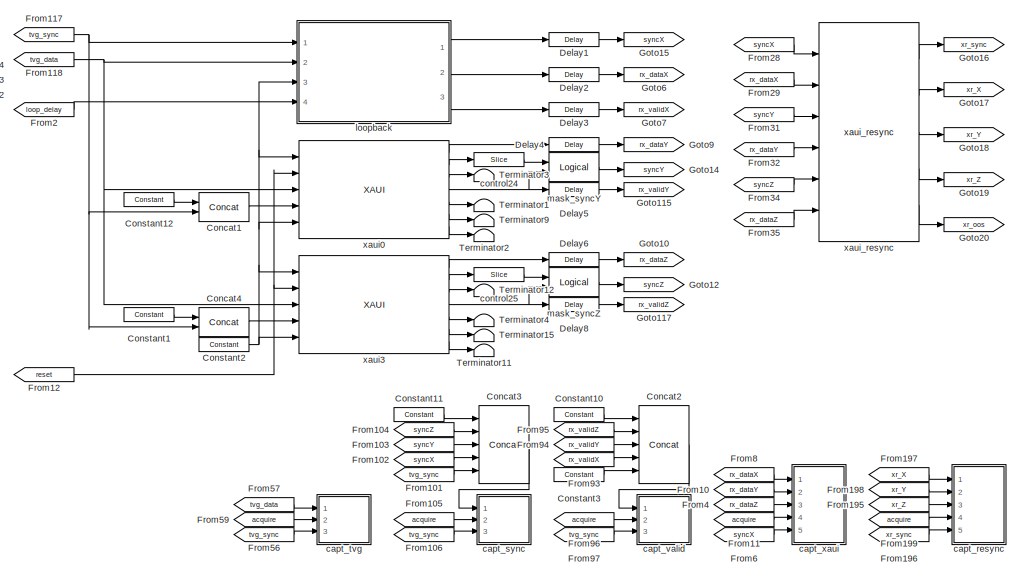
[diagram: root canvas - part 1/2, right side, full height]
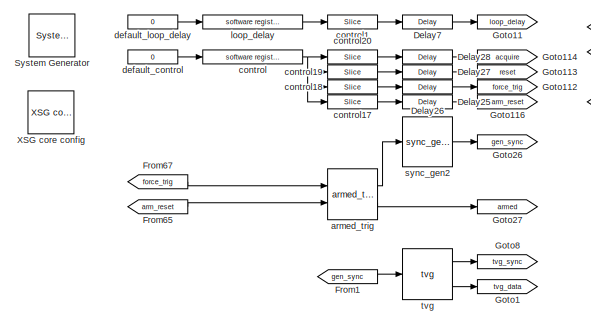
[diagram: root canvas - part 2/2, top left region]
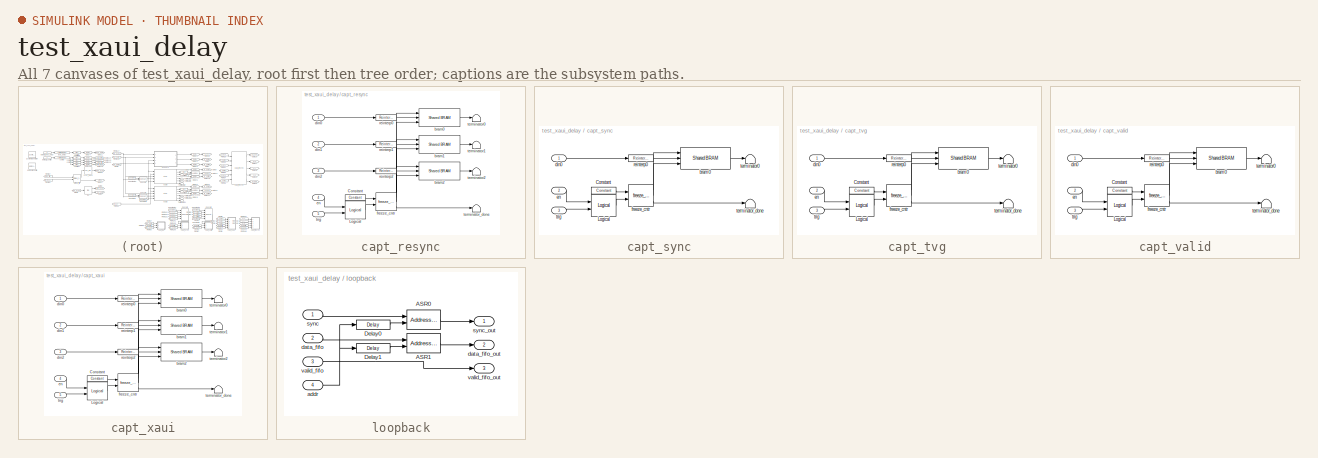
[diagram: thumbnail index - all 7 canvases of the model, root first then tree order]
MODEL test_xaui_delay
KIND model
BLOCK [Reference]  System Generator  REF=xbsIndex_r4/ System Generator
  AttributesFormatString = System\\nGenerator
  FunctionWithSeparateData = off
  Ports = []
  RTWMemSecDataConstants = Inherit from model
  RTWMemSecDataInternal = Inherit from model
  RTWMemSecDataParameters = Inherit from model
  RTWMemSecFuncExecute = Inherit from model
  RTWMemSecFuncInitTerm = Inherit from model
  SID = 1
  ShowPortLabels = FromPortIcon
  SourceBlock = xbsIndex_r4/ System Generator
  SourceType = Xilinx System Generator Block
  SystemSampleTime = -1
  Tag = genX
  UserData = DataTag0
  UserDataPersistent = on
  block_type = sysgen
  block_version = 10.1.1
  clock_wrapper = Clock Enables
  core_generation = According to Block Masks
  dbl_ovrd = According to Block Masks
  dcm_input_clock_period = 100
  deprecated_control = off
  directory = ./test_xaui_delay/sysgen
  eval_field = 0
  has_advanced_control = 0
  incr_netlist = off
  infoedit = System Generator
  package = ff1136
  part = xc5vsx95t
  run_coregen = off
  sg_icon_stat = 46,43,-1,-1,red,beige,0,07734,right
  sg_mask_display = fprintf('','COMMENT: begin icon graphics');\npatch([0 46 46 0 ],[0 0 43 43 ],[0.93 0.92 0.86]);\npatch([11 4 14 4 11 22 25 28 40 30 21 14 23 14 21 30 40 28 25 22 11 ],[5 12 22 32 39 39 36 39 39 29 38 31 22 13 6 15 5 5 8 5 5 ],[0.6 0.2 0.25]);\nplot([0 46 46 0 0 ],[0 0 43 43 0 ]);\nfprintf('','COMMENT: end icon graphics');\nfprintf('','COMMENT: begin icon text');\nfprintf('','COMMENT: end icon text...<+5ch>
  sggui_pos = -1,-1,-1,-1
  simulink_period = 1
  speed = -1
  synthesis_tool = XST
  sysclk_period = 5
  testbench = off
  trim_vbits = Everywhere in SubSystem
  xilinxfamily = virtex5
BLOCK [Reference] Concat1  REF=xbsIndex_r4/Concat
  Ports = [2, 1]
  SID = 380
  SourceBlock = xbsIndex_r4/Concat
  SourceType = Xilinx Bus Concatenator Block
  block_type = concat
  block_version = 11.3
  dbl_ovrd = off
  has_advanced_control = 0
  infoedit = Concatenates two or more inputs.  Output will be cast to an unsigned value with the binary point at zero.
  num_inputs = 2
  sg_icon_stat = 50,29,2,1,white,blue,0,97b7e8d2,right,
  sg_mask_display = fprintf('','COMMENT: begin icon graphics');\npatch([0 1 1 0 ],[0 0 1 1 ],[0.77 0.82 0.91]);\npatch([0.34 0.24 0.38 0.24 0.34 0.5 0.54 0.58 0.74 0.62 0.5 0.4 0.54 0.4 0.5 0.62 0.74 0.58 0.54 0.5 0.34 ],[0.103448 0.275862 0.517241 0.758621 0.931034 0.931034 0.862069 0.931034 0.931034 0.724138 0.931034 0.758621 0.517241 0.275862 0.103448 0.310345 0.103448 0.103448 0.172414 0.103448 0.103448 ],[0.98 0...<+258ch>
  sggui_pos = 20,20,328,272
BLOCK [Reference] Concat2  REF=xbsIndex_r4/Concat
  Ports = [5, 1]
  SID = 3
  SourceBlock = xbsIndex_r4/Concat
  SourceType = Xilinx Bus Concatenator Block
  block_type = concat
  block_version = 11.3
  dbl_ovrd = off
  has_advanced_control = 0
  infoedit = Concatenates two or more inputs.  Output will be cast to an unsigned value with the binary point at zero.
  num_inputs = 5
  sg_icon_stat = 50,78,5,1,white,blue,0,ad0df03d,right,
  sg_mask_display = fprintf('','COMMENT: begin icon graphics');\npatch([0 1 1 0 ],[0 0 1 1 ],[0.77 0.82 0.91]);\npatch([0.22 0.06 0.3 0.06 0.22 0.48 0.56 0.64 0.92 0.7 0.48 0.32 0.56 0.32 0.48 0.7 0.92 0.64 0.56 0.48 0.22 ],[0.24359 0.346154 0.5 0.653846 0.75641 0.75641 0.705128 0.75641 0.75641 0.615385 0.75641 0.653846 0.5 0.346154 0.24359 0.384615 0.24359 0.24359 0.294872 0.24359 0.24359 ],[0.98 0.96 0.92]);\nplot(...<+240ch>
  sggui_pos = 20,20,328,272
BLOCK [Reference] Concat3  REF=xbsIndex_r4/Concat
  Ports = [5, 1]
  SID = 4
  SourceBlock = xbsIndex_r4/Concat
  SourceType = Xilinx Bus Concatenator Block
  block_type = concat
  block_version = 11.3
  dbl_ovrd = off
  has_advanced_control = 0
  infoedit = Concatenates two or more inputs.  Output will be cast to an unsigned value with the binary point at zero.
  num_inputs = 5
  sg_icon_stat = 50,78,5,1,white,blue,0,ad0df03d,right,
  sg_mask_display = fprintf('','COMMENT: begin icon graphics');\npatch([0 1 1 0 ],[0 0 1 1 ],[0.77 0.82 0.91]);\npatch([0.22 0.06 0.3 0.06 0.22 0.48 0.56 0.64 0.92 0.7 0.48 0.32 0.56 0.32 0.48 0.7 0.92 0.64 0.56 0.48 0.22 ],[0.24359 0.346154 0.5 0.653846 0.75641 0.75641 0.705128 0.75641 0.75641 0.615385 0.75641 0.653846 0.5 0.346154 0.24359 0.384615 0.24359 0.24359 0.294872 0.24359 0.24359 ],[0.98 0.96 0.92]);\nplot(...<+240ch>
  sggui_pos = 20,20,328,272
BLOCK [Reference] Concat4  REF=xbsIndex_r4/Concat
  Ports = [2, 1]
  SID = 381
  SourceBlock = xbsIndex_r4/Concat
  SourceType = Xilinx Bus Concatenator Block
  block_type = concat
  block_version = 11.3
  dbl_ovrd = off
  has_advanced_control = 0
  infoedit = Concatenates two or more inputs.  Output will be cast to an unsigned value with the binary point at zero.
  num_inputs = 2
  sg_icon_stat = 50,29,2,1,white,blue,0,97b7e8d2,right,
  sg_mask_display = fprintf('','COMMENT: begin icon graphics');\npatch([0 1 1 0 ],[0 0 1 1 ],[0.77 0.82 0.91]);\npatch([0.34 0.24 0.38 0.24 0.34 0.5 0.54 0.58 0.74 0.62 0.5 0.4 0.54 0.4 0.5 0.62 0.74 0.58 0.54 0.5 0.34 ],[0.103448 0.275862 0.517241 0.758621 0.931034 0.931034 0.862069 0.931034 0.931034 0.724138 0.931034 0.758621 0.517241 0.275862 0.103448 0.310345 0.103448 0.103448 0.172414 0.103448 0.103448 ],[0.98 0...<+258ch>
  sggui_pos = 20,20,328,272
BLOCK [Reference] Constant1  REF=xbsIndex_r4/Constant
  Ports = [0, 1]
  SID = 383
  SourceBlock = xbsIndex_r4/Constant
  SourceType = Xilinx Constant Block Block
  arith_type = Unsigned
  bin_pt = 0
  block_type = constant
  block_version = 10.1.1
  carry = CIN
  const = 0
  dbl_ovrd = off
  dsp48_infoedit = The use of this block for DSP48 instructions is deprecated.  Please use the Opmode block.
  equ = P=C
  explicit_period = on
  has_advanced_control = 0
  inp1 = P
  inp2 = PCIN>>17
  n_bits = 3
  opr = +
  opselect = C
  period = 1
  sg_icon_stat = 50,14,0,1,white,blue,0,bf4ddd8b,right,
  sg_mask_display = fprintf('','COMMENT: begin icon graphics');\npatch([0 1 1 0 ],[0 0 1 1 ],[0.77 0.82 0.91]);\npatch([0.42 0.38 0.44 0.38 0.42 0.5 0.52 0.54 0.62 0.56 0.5 0.46 0.52 0.46 0.5 0.56 0.62 0.54 0.52 0.5 0.42 ],[0.142857 0.285714 0.5 0.714286 0.857143 0.857143 0.785714 0.857143 0.857143 0.642857 0.857143 0.714286 0.5 0.285714 0.142857 0.357143 0.142857 0.142857 0.214286 0.142857 0.142857 ],[0.98 0.96 0.92...<+206ch>  <repeated x11 — deduplicated; at blocks: Constant1, Constant10, Constant11, Constant12, Constant2, Constant3, Constant>
  sggui_pos = 20,20,554,541
BLOCK [Reference] Constant10  REF=xbsIndex_r4/Constant
  Ports = [0, 1]
  SID = 7
  SourceBlock = xbsIndex_r4/Constant
  SourceType = Xilinx Constant Block Block
  arith_type = Unsigned
  bin_pt = 0
  block_type = constant
  block_version = 10.1.1
  carry = CIN
  const = 0
  dbl_ovrd = off
  dsp48_infoedit = The use of this block for DSP48 instructions is deprecated.  Please use the Opmode block.
  equ = P=C
  explicit_period = on
  has_advanced_control = 0
  inp1 = P
  inp2 = PCIN>>17
  n_bits = 28
  opr = +
  opselect = C
  period = 1
  sg_icon_stat = 50,14,0,1,white,blue,0,bf4ddd8b,right,
  sggui_pos = 20,20,554,541
BLOCK [Reference] Constant11  REF=xbsIndex_r4/Constant
  Ports = [0, 1]
  SID = 8
  SourceBlock = xbsIndex_r4/Constant
  SourceType = Xilinx Constant Block Block
  arith_type = Unsigned
  bin_pt = 0
  block_type = constant
  block_version = 10.1.1
  carry = CIN
  const = 0
  dbl_ovrd = off
  dsp48_infoedit = The use of this block for DSP48 instructions is deprecated.  Please use the Opmode block.
  equ = P=C
  explicit_period = on
  has_advanced_control = 0
  inp1 = P
  inp2 = PCIN>>17
  n_bits = 28
  opr = +
  opselect = C
  period = 1
  sg_icon_stat = 50,14,0,1,white,blue,0,bf4ddd8b,right,
  sggui_pos = 20,20,554,541
BLOCK [Reference] Constant12  REF=xbsIndex_r4/Constant
  Ports = [0, 1]
  SID = 384
  SourceBlock = xbsIndex_r4/Constant
  SourceType = Xilinx Constant Block Block
  arith_type = Unsigned
  bin_pt = 0
  block_type = constant
  block_version = 10.1.1
  carry = CIN
  const = 0
  dbl_ovrd = off
  dsp48_infoedit = The use of this block for DSP48 instructions is deprecated.  Please use the Opmode block.
  equ = P=C
  explicit_period = on
  has_advanced_control = 0
  inp1 = P
  inp2 = PCIN>>17
  n_bits = 3
  opr = +
  opselect = C
  period = 1
  sg_icon_stat = 50,14,0,1,white,blue,0,bf4ddd8b,right,
  sggui_pos = 20,20,554,541
BLOCK [Reference] Constant2  REF=xbsIndex_r4/Constant
  Ports = [0, 1]
  SID = 433
  SourceBlock = xbsIndex_r4/Constant
  SourceType = Xilinx Constant Block Block
  arith_type = Boolean
  bin_pt = 0
  block_type = constant
  block_version = 10.1.1
  carry = CIN
  const = 1
  dbl_ovrd = off
  dsp48_infoedit = The use of this block for DSP48 instructions is deprecated.  Please use the Opmode block.
  equ = P=C
  explicit_period = on
  has_advanced_control = 0
  inp1 = P
  inp2 = PCIN>>17
  n_bits = 1
  opr = +
  opselect = C
  period = 1
  sg_icon_stat = 50,14,0,1,white,blue,0,1c72b5be,right,
  sg_list_contents = {'table'=>{'carry'=>'popup(0|1|CIN|~SIGN(P or PCIN)|~SIGN(A*B or A:B)|~SIGND(A*B or A:B))','inp1'=>'popup(0|P|A:B|A*B|C|P+C|A:B+C)','inp2'=>'popup(0|PCIN|P|C|PCIN>>17|P>>17)','opselect'=>'popup(C + A*B|PCIN + A*B|P + A*B|A * B|C + A:B|C - A:B|C|Custom)','userSelections'=>{'carry'=>'CIN','inp1'=>'P','inp2'=>'PCIN>>17','opselect'=>'C'}}}
  sggui_pos = 20,20,554,541
BLOCK [Reference] Constant3  REF=xbsIndex_r4/Constant
  Ports = [0, 1]
  SID = 447
  SourceBlock = xbsIndex_r4/Constant
  SourceType = Xilinx Constant Block Block
  arith_type = Boolean
  bin_pt = 0
  block_type = constant
  block_version = 10.1.1
  carry = CIN
  const = 1
  dbl_ovrd = off
  dsp48_infoedit = The use of this block for DSP48 instructions is deprecated.  Please use the Opmode block.
  equ = P=C
  explicit_period = on
  has_advanced_control = 0
  inp1 = P
  inp2 = PCIN>>17
  n_bits = 1
  opr = +
  opselect = C
  period = 1
  sg_icon_stat = 50,14,0,1,white,blue,0,1c72b5be,right,
  sg_list_contents = {'table'=>{'carry'=>'popup(0|1|CIN|~SIGN(P or PCIN)|~SIGN(A*B or A:B)|~SIGND(A*B or A:B))','inp1'=>'popup(0|P|A:B|A*B|C|P+C|A:B+C)','inp2'=>'popup(0|PCIN|P|C|PCIN>>17|P>>17)','opselect'=>'popup(C + A*B|PCIN + A*B|P + A*B|A * B|C + A:B|C - A:B|C|Custom)','userSelections'=>{'carry'=>'CIN','inp1'=>'P','inp2'=>'PCIN>>17','opselect'=>'C'}}}
  sggui_pos = 20,20,554,541
BLOCK [Reference] Delay1  REF=xbsIndex_r4/Delay
  Ports = [1, 1]
  SID = 452
  SourceBlock = xbsIndex_r4/Delay
  SourceType = Xilinx Delay Block
  block_type = delay
  block_version = 10.1.3
  dbl_ovrd = off
  en = off
  has_advanced_control = 0
  infoedit = Hardware notes: A delay line is a chain, each link of which is an SRL16 followed by a flip-flop.
  latency = 1
  reg_retiming = on
  sg_icon_stat = 50,14,1,1,white,blue,0,07b98262,right,
  sg_mask_display = fprintf('','COMMENT: begin icon graphics');\npatch([0 1 1 0 ],[0 0 1 1 ],[0.77 0.82 0.91]);\npatch([0.42 0.38 0.44 0.38 0.42 0.5 0.52 0.54 0.62 0.56 0.5 0.46 0.52 0.46 0.5 0.56 0.62 0.54 0.52 0.5 0.42 ],[0.142857 0.285714 0.5 0.714286 0.857143 0.857143 0.785714 0.857143 0.857143 0.642857 0.857143 0.714286 0.5 0.285714 0.142857 0.357143 0.142857 0.142857 0.214286 0.142857 0.142857 ],[0.98 0.96 0.92...<+209ch>  <repeated x14 — deduplicated; at blocks: Delay1, Delay2, Delay25, Delay26, Delay27, Delay28, Delay3, Delay4, Delay5, Delay6, Delay7, Delay8, Delay0>
  sggui_pos = 20,20,348,255
  xl_area = [0,0,0,0,0,0,0]
  xl_use_area = off
BLOCK [Reference] Delay2  REF=xbsIndex_r4/Delay
  Ports = [1, 1]
  SID = 453
  SourceBlock = xbsIndex_r4/Delay
  SourceType = Xilinx Delay Block
  block_type = delay
  block_version = 10.1.3
  dbl_ovrd = off
  en = off
  has_advanced_control = 0
  infoedit = Hardware notes: A delay line is a chain, each link of which is an SRL16 followed by a flip-flop.
  latency = 1
  reg_retiming = on
  sg_icon_stat = 50,14,1,1,white,blue,0,07b98262,right,
  sggui_pos = 20,20,348,255
  xl_area = [0,0,0,0,0,0,0]
  xl_use_area = off
BLOCK [Reference] Delay25  REF=xbsIndex_r4/Delay
  Ports = [1, 1]
  SID = 21
  SourceBlock = xbsIndex_r4/Delay
  SourceType = Xilinx Delay Block
  block_type = delay
  block_version = 10.1.3
  dbl_ovrd = off
  en = off
  has_advanced_control = 0
  infoedit = Hardware notes: A delay line is a chain, each link of which is an SRL16 followed by a flip-flop.
  latency = 1
  reg_retiming = on
  sg_icon_stat = 50,14,1,1,white,blue,0,07b98262,right,
  sggui_pos = 0,0,419,315
  xl_area = [0,0,0,0,0,0,0]
  xl_use_area = off
BLOCK [Reference] Delay26  REF=xbsIndex_r4/Delay
  Ports = [1, 1]
  SID = 22
  SourceBlock = xbsIndex_r4/Delay
  SourceType = Xilinx Delay Block
  block_type = delay
  block_version = 10.1.3
  dbl_ovrd = off
  en = off
  has_advanced_control = 0
  infoedit = Hardware notes: A delay line is a chain, each link of which is an SRL16 followed by a flip-flop.
  latency = 1
  reg_retiming = on
  sg_icon_stat = 50,14,1,1,white,blue,0,07b98262,right,
  sggui_pos = 20,20,348,255
  xl_area = [0,0,0,0,0,0,0]
  xl_use_area = off
BLOCK [Reference] Delay27  REF=xbsIndex_r4/Delay
  Ports = [1, 1]
  SID = 23
  SourceBlock = xbsIndex_r4/Delay
  SourceType = Xilinx Delay Block
  block_type = delay
  block_version = 10.1.3
  dbl_ovrd = off
  en = off
  has_advanced_control = 0
  infoedit = Hardware notes: A delay line is a chain, each link of which is an SRL16 followed by a flip-flop.
  latency = 1
  reg_retiming = on
  sg_icon_stat = 50,14,1,1,white,blue,0,07b98262,right,
  sggui_pos = 0,0,543,392
  xl_area = [0,0,0,0,0,0,0]
  xl_use_area = off
BLOCK [Reference] Delay28  REF=xbsIndex_r4/Delay
  Ports = [1, 1]
  SID = 24
  SourceBlock = xbsIndex_r4/Delay
  SourceType = Xilinx Delay Block
  block_type = delay
  block_version = 10.1.3
  dbl_ovrd = off
  en = off
  has_advanced_control = 0
  infoedit = Hardware notes: A delay line is a chain, each link of which is an SRL16 followed by a flip-flop.
  latency = 1
  reg_retiming = on
  sg_icon_stat = 50,14,1,1,white,blue,0,07b98262,right,
  sggui_pos = 0,0,419,315
  xl_area = [0,0,0,0,0,0,0]
  xl_use_area = off
BLOCK [Reference] Delay3  REF=xbsIndex_r4/Delay
  Ports = [1, 1]
  SID = 454
  SourceBlock = xbsIndex_r4/Delay
  SourceType = Xilinx Delay Block
  block_type = delay
  block_version = 10.1.3
  dbl_ovrd = off
  en = off
  has_advanced_control = 0
  infoedit = Hardware notes: A delay line is a chain, each link of which is an SRL16 followed by a flip-flop.
  latency = 1
  reg_retiming = on
  sg_icon_stat = 50,14,1,1,white,blue,0,07b98262,right,
  sggui_pos = 20,20,348,255
  xl_area = [0,0,0,0,0,0,0]
  xl_use_area = off
BLOCK [Reference] Delay4  REF=xbsIndex_r4/Delay
  Ports = [1, 1]
  SID = 455
  SourceBlock = xbsIndex_r4/Delay
  SourceType = Xilinx Delay Block
  block_type = delay
  block_version = 10.1.3
  dbl_ovrd = off
  en = off
  has_advanced_control = 0
  infoedit = Hardware notes: A delay line is a chain, each link of which is an SRL16 followed by a flip-flop.
  latency = 1
  reg_retiming = on
  sg_icon_stat = 50,14,1,1,white,blue,0,07b98262,right,
  sggui_pos = 20,20,348,255
  xl_area = [0,0,0,0,0,0,0]
  xl_use_area = off
BLOCK [Reference] Delay5  REF=xbsIndex_r4/Delay
  Ports = [1, 1]
  SID = 456
  SourceBlock = xbsIndex_r4/Delay
  SourceType = Xilinx Delay Block
  block_type = delay
  block_version = 10.1.3
  dbl_ovrd = off
  en = off
  has_advanced_control = 0
  infoedit = Hardware notes: A delay line is a chain, each link of which is an SRL16 followed by a flip-flop.
  latency = 1
  reg_retiming = on
  sg_icon_stat = 50,14,1,1,white,blue,0,07b98262,right,
  sggui_pos = 20,20,348,255
  xl_area = [0,0,0,0,0,0,0]
  xl_use_area = off
BLOCK [Reference] Delay6  REF=xbsIndex_r4/Delay
  Ports = [1, 1]
  SID = 457
  SourceBlock = xbsIndex_r4/Delay
  SourceType = Xilinx Delay Block
  block_type = delay
  block_version = 10.1.3
  dbl_ovrd = off
  en = off
  has_advanced_control = 0
  infoedit = Hardware notes: A delay line is a chain, each link of which is an SRL16 followed by a flip-flop.
  latency = 1
  reg_retiming = on
  sg_icon_stat = 50,14,1,1,white,blue,0,07b98262,right,
  sggui_pos = 20,20,348,255
  xl_area = [0,0,0,0,0,0,0]
  xl_use_area = off
BLOCK [Reference] Delay7  REF=xbsIndex_r4/Delay
  Ports = [1, 1]
  SID = 333
  SourceBlock = xbsIndex_r4/Delay
  SourceType = Xilinx Delay Block
  block_type = delay
  block_version = 10.1.3
  dbl_ovrd = off
  en = off
  has_advanced_control = 0
  infoedit = Hardware notes: A delay line is a chain, each link of which is an SRL16 followed by a flip-flop.
  latency = 1
  reg_retiming = on
  sg_icon_stat = 50,14,1,1,white,blue,0,07b98262,right,
  sggui_pos = 20,20,348,255
  xl_area = [0,0,0,0,0,0,0]
  xl_use_area = off
BLOCK [Reference] Delay8  REF=xbsIndex_r4/Delay
  Ports = [1, 1]
  SID = 458
  SourceBlock = xbsIndex_r4/Delay
  SourceType = Xilinx Delay Block
  block_type = delay
  block_version = 10.1.3
  dbl_ovrd = off
  en = off
  has_advanced_control = 0
  infoedit = Hardware notes: A delay line is a chain, each link of which is an SRL16 followed by a flip-flop.
  latency = 1
  reg_retiming = on
  sg_icon_stat = 50,14,1,1,white,blue,0,07b98262,right,
  sggui_pos = 20,20,348,255
  xl_area = [0,0,0,0,0,0,0]
  xl_use_area = off
BLOCK [From] From1
  CloseFcn = tagdialog Close
  GotoTag = gen_sync
  SID = 267
BLOCK [From] From10
  CloseFcn = tagdialog Close
  GotoTag = rx_dataY
  SID = 33
BLOCK [From] From101
  CloseFcn = tagdialog Close
  GotoTag = tvg_sync
  SID = 35
BLOCK [From] From102
  CloseFcn = tagdialog Close
  GotoTag = syncX
  SID = 36
BLOCK [From] From103
  CloseFcn = tagdialog Close
  GotoTag = syncY
  SID = 37
BLOCK [From] From104
  CloseFcn = tagdialog Close
  GotoTag = syncZ
  SID = 38
BLOCK [From] From105
  CloseFcn = tagdialog Close
  GotoTag = acquire
  SID = 39
BLOCK [From] From106
  CloseFcn = tagdialog Close
  GotoTag = tvg_sync
  SID = 40
BLOCK [From] From11
  CloseFcn = tagdialog Close
  GotoTag = acquire
  SID = 41
BLOCK [From] From117
  CloseFcn = tagdialog Close
  GotoTag = tvg_sync
  SID = 386
BLOCK [From] From118
  CloseFcn = tagdialog Close
  GotoTag = tvg_data
  SID = 387
BLOCK [From] From12
  CloseFcn = tagdialog Close
  GotoTag = reset
  SID = 389
BLOCK [From] From195
  CloseFcn = tagdialog Close
  GotoTag = xr_Z
  SID = 61
BLOCK [From] From196
  CloseFcn = tagdialog Close
  GotoTag = xr_sync
  SID = 62
BLOCK [From] From197
  CloseFcn = tagdialog Close
  GotoTag = xr_X
  SID = 63
BLOCK [From] From198
  CloseFcn = tagdialog Close
  GotoTag = xr_Y
  SID = 64
BLOCK [From] From199
  CloseFcn = tagdialog Close
  GotoTag = acquire
  SID = 65
BLOCK [From] From2
  CloseFcn = tagdialog Close
  GotoTag = loop_delay
  SID = 444
BLOCK [From] From28
  CloseFcn = tagdialog Close
  GotoTag = syncX
  SID = 75
BLOCK [From] From29
  CloseFcn = tagdialog Close
  GotoTag = rx_dataX
  SID = 76
BLOCK [From] From31
  CloseFcn = tagdialog Close
  GotoTag = syncY
  SID = 79
BLOCK [From] From32
  CloseFcn = tagdialog Close
  GotoTag = rx_dataY
  SID = 80
BLOCK [From] From34
  CloseFcn = tagdialog Close
  GotoTag = syncZ
  SID = 82
BLOCK [From] From35
  CloseFcn = tagdialog Close
  GotoTag = rx_dataZ
  SID = 83
BLOCK [From] From4
  CloseFcn = tagdialog Close
  GotoTag = rx_dataZ
  SID = 88
BLOCK [From] From56
  CloseFcn = tagdialog Close
  GotoTag = tvg_sync
  SID = 105
BLOCK [From] From57
  CloseFcn = tagdialog Close
  GotoTag = tvg_data
  SID = 106
BLOCK [From] From59
  CloseFcn = tagdialog Close
  GotoTag = acquire
  SID = 108
BLOCK [From] From6
  CloseFcn = tagdialog Close
  GotoTag = syncX
  SID = 109
BLOCK [From] From65
  CloseFcn = tagdialog Close
  GotoTag = arm_reset
  SID = 114
BLOCK [From] From67
  CloseFcn = tagdialog Close
  GotoTag = force_trig
  SID = 116
BLOCK [From] From8
  CloseFcn = tagdialog Close
  GotoTag = rx_dataX
  SID = 127
BLOCK [From] From93
  CloseFcn = tagdialog Close
  GotoTag = rx_validX
  SID = 140
BLOCK [From] From94
  CloseFcn = tagdialog Close
  GotoTag = rx_validY
  SID = 141
BLOCK [From] From95
  CloseFcn = tagdialog Close
  GotoTag = rx_validZ
  SID = 142
BLOCK [From] From96
  CloseFcn = tagdialog Close
  GotoTag = acquire
  SID = 143
BLOCK [From] From97
  CloseFcn = tagdialog Close
  GotoTag = tvg_sync
  SID = 144
BLOCK [Goto] Goto1
  GotoTag = tvg_data
  SID = 146
  TagVisibility = local
BLOCK [Goto] Goto10
  GotoTag = rx_dataZ
  SID = 398
  TagVisibility = local
BLOCK [Goto] Goto11
  GotoTag = loop_delay
  SID = 334
  TagVisibility = local
BLOCK [Goto] Goto112
  GotoTag = force_trig
  SID = 149
  TagVisibility = local
BLOCK [Goto] Goto113
  GotoTag = reset
  SID = 150
  TagVisibility = local
BLOCK [Goto] Goto114
  GotoTag = acquire
  SID = 151
  TagVisibility = local
BLOCK [Goto] Goto115
  GotoTag = rx_validY
  SID = 397
  TagVisibility = local
BLOCK [Goto] Goto116
  GotoTag = arm_reset
  SID = 153
  TagVisibility = local
BLOCK [Goto] Goto117
  GotoTag = rx_validZ
  SID = 399
  TagVisibility = local
BLOCK [Goto] Goto12
  GotoTag = syncZ
  SID = 400
  TagVisibility = local
BLOCK [Goto] Goto14
  GotoTag = syncY
  SID = 402
  TagVisibility = local
BLOCK [Goto] Goto15
  GotoTag = syncX
  SID = 403
  TagVisibility = local
BLOCK [Goto] Goto16
  GotoTag = xr_sync
  SID = 158
  TagVisibility = local
BLOCK [Goto] Goto17
  GotoTag = xr_X
  SID = 159
  TagVisibility = local
BLOCK [Goto] Goto18
  GotoTag = xr_Y
  SID = 160
  TagVisibility = local
BLOCK [Goto] Goto19
  GotoTag = xr_Z
  SID = 161
  TagVisibility = local
BLOCK [Goto] Goto20
  GotoTag = xr_oos
  SID = 163
  TagVisibility = local
BLOCK [Goto] Goto26
  GotoTag = gen_sync
  SID = 169
  TagVisibility = local
BLOCK [Goto] Goto27
  GotoTag = armed
  SID = 170
  TagVisibility = local
BLOCK [Goto] Goto6
  GotoTag = rx_dataX
  SID = 394
  TagVisibility = local
BLOCK [Goto] Goto7
  GotoTag = rx_validX
  SID = 395
  TagVisibility = local
BLOCK [Goto] Goto8
  GotoTag = tvg_sync
  SID = 273
  TagVisibility = local
BLOCK [Goto] Goto9
  GotoTag = rx_dataY
  SID = 396
  TagVisibility = local
BLOCK [Terminator] Terminator1
  SID = 420
BLOCK [Terminator] Terminator11
  SID = 405
BLOCK [Terminator] Terminator12
  SID = 406
BLOCK [Terminator] Terminator15
  SID = 407
BLOCK [Terminator] Terminator2
  SID = 408
BLOCK [Terminator] Terminator3
  SID = 409
BLOCK [Terminator] Terminator4
  SID = 421
BLOCK [Terminator] Terminator9
  SID = 410
BLOCK [Reference] XSG core config  REF=xps_library/XSG core config  (lib defined in mdl_00b5cec29cd0, mdl_02ab6ecaa3d1, +5 more)
  BEE2_ctrl_clk_src = sys_clk
  BEE2_usr_clk_src = sys_clk
  CORR_clk_src = sys_clk
  FunctionWithSeparateData = off
  Ports = []
  ROACH_clk_src = sys_clk2x
  RTWMemSecDataConstants = Inherit from model
  RTWMemSecDataInternal = Inherit from model
  RTWMemSecDataParameters = Inherit from model
  RTWMemSecFuncExecute = Inherit from model
  RTWMemSecFuncInitTerm = Inherit from model
  SID = 209
  ShowPortLabels = FromPortIcon
  SourceBlock = xps_library/XSG core config
  SourceType = xsg core config
  SystemSampleTime = -1
  Tag = xps:xsg
  clk_rate = 200
  clk_src = sys_clk2x
  gpio_clk_bit_index = 0
  gpio_clk_io_group = iBOB:sma
  hw_sys = ROACH:sx95t
  iBOB_clk_src = sys_clk
  ibob_linux = off
  mpc_type = powerpc440_ext
  sample_period = 1
  synthesis_tool = XST
BLOCK [Reference] armed_trig  REF=isi_correlator_lib/armed_trig  (lib defined in mdl_4b72aa53f299)
  FunctionWithSeparateData = off
  Ports = [2, 2]
  RTWMemSecDataConstants = Inherit from model
  RTWMemSecDataInternal = Inherit from model
  RTWMemSecDataParameters = Inherit from model
  RTWMemSecFuncExecute = Inherit from model
  RTWMemSecFuncInitTerm = Inherit from model
  SID = 210
  ShowPortLabels = FromPortIcon
  SourceBlock = isi_correlator_lib/armed_trig
  SourceType = SubSystem
  SystemSampleTime = -1
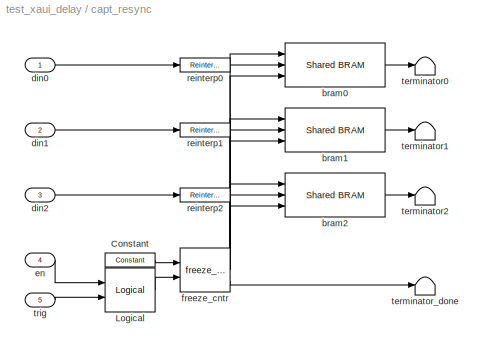
BLOCK [SubSystem] capt_resync
  AncestorBlock = isi_correlator_lib/capture
  FunctionWithSeparateData = off
  MaskCallbackString = ||
  MaskDescription = This block captures N data lines into N separate BRAMs.
  MaskEnableString = on,on,on
  MaskHideContents = off
  MaskIconFrame = on
  MaskIconOpaque = on
  MaskIconRotate = none
  MaskIconUnits = autoscale
  MaskInitialization = capture_init(gcb, ...\n    'num_brams', num_brams, ...\n    'addr_width', addr_width, ...\n    'done_port', done_port);
  MaskPortRotate = default
  MaskPromptString = Number of BRAMs:|Address width:|Provide done port
  MaskSelfModifiable = on
  MaskStyleString = edit,edit,checkbox
  MaskToolTipString = on,on,on
  MaskTunableValueString = on,on,on
  MaskType = capture
  MaskValueString = 3|11|off
  MaskVariables = num_brams=@1;addr_width=@2;done_port=@3;
  MaskVisibilityString = on,on,on
  MinAlgLoopOccurrences = off
  Opaque = off
  Ports = [5]
  PropExecContextOutsideSubsystem = off
  RTWSystemCode = Auto
  RequestExecContextInheritance = off
  SID = 218
  UserData = DataTag1
  UserDataPersistent = on
BLOCK [Reference] capt_resync/Constant  REF=xbsIndex_r4/Constant
  Ports = [0, 1]
  SID = 6
  SourceBlock = xbsIndex_r4/Constant
  SourceType = Xilinx Constant Block Block
  arith_type = Boolean
  bin_pt = 0
  block_type = constant
  block_version = 11.3
  carry = CIN
  const = 1
  dbl_ovrd = off
  dsp48_infoedit = The use of this block for DSP48 instructions is deprecated.  Please use the Opmode block.
  equ = P=C
  explicit_period = on
  has_advanced_control = 0
  inp1 = P
  inp2 = PCIN>>17
  n_bits = 1
  opr = +
  opselect = C
  period = 1
  sg_icon_stat = 50,14,0,1,white,blue,0,1c72b5be,right,
  sggui_pos = -1,-1,-1,-1
BLOCK [Reference] capt_resync/Logical  REF=xbsIndex_r4/Logical
  Ports = [2, 1]
  SID = 7
  SourceBlock = xbsIndex_r4/Logical
  SourceType = Xilinx Logical Block Block
  align_bp = on
  arith_type = Unsigned
  bin_pt = 0
  block_type = logical
  block_version = 11.3
  dbl_ovrd = off
  en = off
  has_advanced_control = 0
  inputs = 2
  latency = 0
  logical_function = AND
  n_bits = 16
  precision = Full
  sg_icon_stat = 50,44,2,1,white,blue,0,0a851f85,right,
  sg_mask_display = fprintf('','COMMENT: begin icon graphics');\npatch([0 1 1 0 ],[0 0 1 1 ],[0.77 0.82 0.91]);\npatch([0.26 0.12 0.32 0.12 0.26 0.5 0.56 0.62 0.86 0.66 0.48 0.34 0.52 0.34 0.48 0.66 0.86 0.62 0.56 0.5 0.26 ],[0.113636 0.272727 0.5 0.727273 0.886364 0.886364 0.818182 0.886364 0.886364 0.659091 0.863636 0.704545 0.5 0.295455 0.136364 0.340909 0.113636 0.113636 0.181818 0.113636 0.113636 ],[0.98 0.96 0....<+232ch>  <repeated x5 — deduplicated; at blocks: Logical>
  sggui_pos = -1,-1,-1,-1
  xl_area = [0,0,0,0,0,0,0]
  xl_use_area = off
BLOCK [Reference] capt_resync/bram0  REF=xps_library/Shared BRAM  (lib defined in mdl_00b5cec29cd0, mdl_02ab6ecaa3d1, +5 more)
  FunctionWithSeparateData = off
  Ports = [3, 1]
  RTWMemSecDataConstants = Inherit from model
  RTWMemSecDataInternal = Inherit from model
  RTWMemSecDataParameters = Inherit from model
  RTWMemSecFuncExecute = Inherit from model
  RTWMemSecFuncInitTerm = Inherit from model
  SID = 8
  ShowPortLabels = FromPortIcon
  SourceBlock = xps_library/Shared BRAM
  SystemSampleTime = -1
  Tag = xps:bram
  addr_width = addr_width
  arith_type = Unsigned
  data_bin_pt = 0
  data_width = 32
  init_vals = 0
  sample_rate = 1
BLOCK [Reference] capt_resync/bram1  REF=xps_library/Shared BRAM  (lib defined in mdl_00b5cec29cd0, mdl_02ab6ecaa3d1, +5 more)
  FunctionWithSeparateData = off
  Ports = [3, 1]
  RTWMemSecDataConstants = Inherit from model
  RTWMemSecDataInternal = Inherit from model
  RTWMemSecDataParameters = Inherit from model
  RTWMemSecFuncExecute = Inherit from model
  RTWMemSecFuncInitTerm = Inherit from model
  SID = 9
  ShowPortLabels = FromPortIcon
  SourceBlock = xps_library/Shared BRAM
  SystemSampleTime = -1
  Tag = xps:bram
  addr_width = addr_width
  arith_type = Unsigned
  data_bin_pt = 0
  data_width = 32
  init_vals = 0
  sample_rate = 1
BLOCK [Reference] capt_resync/bram2  REF=xps_library/Shared BRAM  (lib defined in mdl_00b5cec29cd0, mdl_02ab6ecaa3d1, +5 more)
  FunctionWithSeparateData = off
  Ports = [3, 1]
  RTWMemSecDataConstants = Inherit from model
  RTWMemSecDataInternal = Inherit from model
  RTWMemSecDataParameters = Inherit from model
  RTWMemSecFuncExecute = Inherit from model
  RTWMemSecFuncInitTerm = Inherit from model
  SID = 10
  ShowPortLabels = FromPortIcon
  SourceBlock = xps_library/Shared BRAM
  SystemSampleTime = -1
  Tag = xps:bram
  addr_width = addr_width
  arith_type = Unsigned
  data_bin_pt = 0
  data_width = 32
  init_vals = 0
  sample_rate = 1
BLOCK [Inport] capt_resync/din0
  IconDisplay = Port number
  SID = 1
BLOCK [Inport] capt_resync/din1
  IconDisplay = Port number
  Port = 2
  SID = 2
BLOCK [Inport] capt_resync/din2
  IconDisplay = Port number
  Port = 3
  SID = 3
BLOCK [Inport] capt_resync/en
  IconDisplay = Port number
  Port = 4
  SID = 4
BLOCK [Reference] capt_resync/freeze_cntr  REF=casper_library/Misc/freeze_cntr  (lib defined in mdl_138b2fc3435f, mdl_4ed325b712b3, +2 more)
  CounterBits = addr_width
  FunctionWithSeparateData = off
  Ports = [2, 3]
  RTWMemSecDataConstants = Inherit from model
  RTWMemSecDataInternal = Inherit from model
  RTWMemSecDataParameters = Inherit from model
  RTWMemSecFuncExecute = Inherit from model
  RTWMemSecFuncInitTerm = Inherit from model
  SID = 11
  ShowPortLabels = FromPortIcon
  SourceBlock = casper_library/Misc/freeze_cntr
  SourceType = freeze_cntr
  SystemSampleTime = -1
BLOCK [Reference] capt_resync/reinterp0  REF=xbsIndex_r4/Reinterpret
  Ports = [1, 1]
  SID = 12
  SourceBlock = xbsIndex_r4/Reinterpret
  SourceType = Xilinx Type Reinterpreter Block
  arith_type = Unsigned
  bin_pt = 0
  block_type = reinterpret
  block_version = 11.3
  force_arith_type = on
  force_bin_pt = on
  has_advanced_control = 0
  infoedit = Changes signal type without altering the binary representation.   You can changed the signal between signed and unsigned, and relocate the binary point.<br><br>Hardware notes: In hardware this block costs nothing.<br><br>Example:  Suppose the input is 6 bits wide, signed, with 2 fractional bits, and the output is forced to unsigned with 0 fractional bits.  Then an input of -2.0 (1110.00 in binary ...<+59ch>  <repeated x9 — deduplicated; at blocks: reinterp0, reinterp1, reinterp2>
  sg_icon_stat = 50,14,1,1,white,blue,0,6b04d0b0,right,
  sg_mask_display = fprintf('','COMMENT: begin icon graphics');\npatch([0 1 1 0 ],[0 0 1 1 ],[0.77 0.82 0.91]);\npatch([0.42 0.38 0.44 0.38 0.42 0.5 0.52 0.54 0.62 0.56 0.5 0.46 0.52 0.46 0.5 0.56 0.62 0.54 0.52 0.5 0.42 ],[0.142857 0.285714 0.5 0.714286 0.857143 0.857143 0.785714 0.857143 0.857143 0.642857 0.857143 0.714286 0.5 0.285714 0.142857 0.357143 0.142857 0.142857 0.214286 0.142857 0.142857 ],[0.98 0.96 0.92...<+199ch>  <repeated x9 — deduplicated; at blocks: reinterp0, reinterp1, reinterp2>
  sggui_pos = -1,-1,-1,-1
BLOCK [Reference] capt_resync/reinterp1  REF=xbsIndex_r4/Reinterpret
  Ports = [1, 1]
  SID = 13
  SourceBlock = xbsIndex_r4/Reinterpret
  SourceType = Xilinx Type Reinterpreter Block
  arith_type = Unsigned
  bin_pt = 0
  block_type = reinterpret
  block_version = 11.3
  force_arith_type = on
  force_bin_pt = on
  has_advanced_control = 0
  sg_icon_stat = 50,14,1,1,white,blue,0,6b04d0b0,right,
  sggui_pos = -1,-1,-1,-1
BLOCK [Reference] capt_resync/reinterp2  REF=xbsIndex_r4/Reinterpret
  Ports = [1, 1]
  SID = 14
  SourceBlock = xbsIndex_r4/Reinterpret
  SourceType = Xilinx Type Reinterpreter Block
  arith_type = Unsigned
  bin_pt = 0
  block_type = reinterpret
  block_version = 11.3
  force_arith_type = on
  force_bin_pt = on
  has_advanced_control = 0
  sg_icon_stat = 50,14,1,1,white,blue,0,6b04d0b0,right,
  sggui_pos = -1,-1,-1,-1
BLOCK [Terminator] capt_resync/terminator0
  SID = 15
BLOCK [Terminator] capt_resync/terminator1
  SID = 16
BLOCK [Terminator] capt_resync/terminator2
  SID = 17
BLOCK [Terminator] capt_resync/terminator_done
  SID = 18
BLOCK [Inport] capt_resync/trig
  IconDisplay = Port number
  Port = 5
  SID = 5
BLOCK [SubSystem] capt_sync
  AncestorBlock = isi_correlator_lib/capture
  FunctionWithSeparateData = off
  MaskCallbackString = ||
  MaskDescription = This block captures N data lines into N separate BRAMs.
  MaskEnableString = on,on,on
  MaskHideContents = off
  MaskIconFrame = on
  MaskIconOpaque = on
  MaskIconRotate = none
  MaskIconUnits = autoscale
  MaskInitialization = capture_init(gcb, ...\n    'num_brams', num_brams, ...\n    'addr_width', addr_width, ...\n    'done_port', done_port);
  MaskPortRotate = default
  MaskPromptString = Number of BRAMs:|Address width:|Provide done port
  MaskSelfModifiable = on
  MaskStyleString = edit,edit,checkbox
  MaskToolTipString = on,on,on
  MaskTunableValueString = on,on,on
  MaskType = capture
  MaskValueString = 1|11|off
  MaskVariables = num_brams=@1;addr_width=@2;done_port=@3;
  MaskVisibilityString = on,on,on
  MinAlgLoopOccurrences = off
  Opaque = off
  Ports = [3]
  PropExecContextOutsideSubsystem = off
  RTWSystemCode = Auto
  RequestExecContextInheritance = off
  SID = 219
  UserData = DataTag2
  UserDataPersistent = on
BLOCK [Reference] capt_sync/Constant  REF=xbsIndex_r4/Constant
  Ports = [0, 1]
  SID = 4
  SourceBlock = xbsIndex_r4/Constant
  SourceType = Xilinx Constant Block Block
  arith_type = Boolean
  bin_pt = 0
  block_type = constant
  block_version = 11.3
  carry = CIN
  const = 1
  dbl_ovrd = off
  dsp48_infoedit = The use of this block for DSP48 instructions is deprecated.  Please use the Opmode block.
  equ = P=C
  explicit_period = on
  has_advanced_control = 0
  inp1 = P
  inp2 = PCIN>>17
  n_bits = 1
  opr = +
  opselect = C
  period = 1
  sg_icon_stat = 50,14,0,1,white,blue,0,1c72b5be,right,
  sggui_pos = -1,-1,-1,-1
BLOCK [Reference] capt_sync/Logical  REF=xbsIndex_r4/Logical
  Ports = [2, 1]
  SID = 5
  SourceBlock = xbsIndex_r4/Logical
  SourceType = Xilinx Logical Block Block
  align_bp = on
  arith_type = Unsigned
  bin_pt = 0
  block_type = logical
  block_version = 11.3
  dbl_ovrd = off
  en = off
  has_advanced_control = 0
  inputs = 2
  latency = 0
  logical_function = AND
  n_bits = 16
  precision = Full
  sg_icon_stat = 50,44,2,1,white,blue,0,0a851f85,right,
  sggui_pos = -1,-1,-1,-1
  xl_area = [0,0,0,0,0,0,0]
  xl_use_area = off
BLOCK [Reference] capt_sync/bram0  REF=xps_library/Shared BRAM  (lib defined in mdl_00b5cec29cd0, mdl_02ab6ecaa3d1, +5 more)
  FunctionWithSeparateData = off
  Ports = [3, 1]
  RTWMemSecDataConstants = Inherit from model
  RTWMemSecDataInternal = Inherit from model
  RTWMemSecDataParameters = Inherit from model
  RTWMemSecFuncExecute = Inherit from model
  RTWMemSecFuncInitTerm = Inherit from model
  SID = 6
  ShowPortLabels = FromPortIcon
  SourceBlock = xps_library/Shared BRAM
  SystemSampleTime = -1
  Tag = xps:bram
  addr_width = addr_width
  arith_type = Unsigned
  data_bin_pt = 0
  data_width = 32
  init_vals = 0
  sample_rate = 1
BLOCK [Inport] capt_sync/din0
  IconDisplay = Port number
  SID = 1
BLOCK [Inport] capt_sync/en
  IconDisplay = Port number
  Port = 2
  SID = 2
BLOCK [Reference] capt_sync/freeze_cntr  REF=casper_library/Misc/freeze_cntr  (lib defined in mdl_138b2fc3435f, mdl_4ed325b712b3, +2 more)
  CounterBits = addr_width
  FunctionWithSeparateData = off
  Ports = [2, 3]
  RTWMemSecDataConstants = Inherit from model
  RTWMemSecDataInternal = Inherit from model
  RTWMemSecDataParameters = Inherit from model
  RTWMemSecFuncExecute = Inherit from model
  RTWMemSecFuncInitTerm = Inherit from model
  SID = 7
  ShowPortLabels = FromPortIcon
  SourceBlock = casper_library/Misc/freeze_cntr
  SourceType = freeze_cntr
  SystemSampleTime = -1
BLOCK [Reference] capt_sync/reinterp0  REF=xbsIndex_r4/Reinterpret
  Ports = [1, 1]
  SID = 8
  SourceBlock = xbsIndex_r4/Reinterpret
  SourceType = Xilinx Type Reinterpreter Block
  arith_type = Unsigned
  bin_pt = 0
  block_type = reinterpret
  block_version = 11.3
  force_arith_type = on
  force_bin_pt = on
  has_advanced_control = 0
  sg_icon_stat = 50,14,1,1,white,blue,0,6b04d0b0,right,
  sggui_pos = -1,-1,-1,-1
BLOCK [Terminator] capt_sync/terminator0
  SID = 9
BLOCK [Terminator] capt_sync/terminator_done
  SID = 10
BLOCK [Inport] capt_sync/trig
  IconDisplay = Port number
  Port = 3
  SID = 3
BLOCK [SubSystem] capt_tvg
  AncestorBlock = isi_correlator_lib/capture
  FunctionWithSeparateData = off
  MaskCallbackString = ||
  MaskDescription = This block captures N data lines into N separate BRAMs.
  MaskEnableString = on,on,on
  MaskHideContents = off
  MaskIconFrame = on
  MaskIconOpaque = on
  MaskIconRotate = none
  MaskIconUnits = autoscale
  MaskInitialization = capture_init(gcb, ...\n    'num_brams', num_brams, ...\n    'addr_width', addr_width, ...\n    'done_port', done_port);
  MaskPortRotate = default
  MaskPromptString = Number of BRAMs:|Address width:|Provide done port
  MaskSelfModifiable = on
  MaskStyleString = edit,edit,checkbox
  MaskToolTipString = on,on,on
  MaskTunableValueString = on,on,on
  MaskType = capture
  MaskValueString = 1|11|off
  MaskVariables = num_brams=@1;addr_width=@2;done_port=@3;
  MaskVisibilityString = on,on,on
  MinAlgLoopOccurrences = off
  Opaque = off
  Ports = [3]
  PropExecContextOutsideSubsystem = off
  RTWSystemCode = Auto
  RequestExecContextInheritance = off
  SID = 446
  UserData = DataTag3
  UserDataPersistent = on
BLOCK [Reference] capt_tvg/Constant  REF=xbsIndex_r4/Constant
  Ports = [0, 1]
  SID = 4
  SourceBlock = xbsIndex_r4/Constant
  SourceType = Xilinx Constant Block Block
  arith_type = Boolean
  bin_pt = 0
  block_type = constant
  block_version = 11.3
  carry = CIN
  const = 1
  dbl_ovrd = off
  dsp48_infoedit = The use of this block for DSP48 instructions is deprecated.  Please use the Opmode block.
  equ = P=C
  explicit_period = on
  has_advanced_control = 0
  inp1 = P
  inp2 = PCIN>>17
  n_bits = 1
  opr = +
  opselect = C
  period = 1
  sg_icon_stat = 50,14,0,1,white,blue,0,1c72b5be,right,
  sggui_pos = -1,-1,-1,-1
BLOCK [Reference] capt_tvg/Logical  REF=xbsIndex_r4/Logical
  Ports = [2, 1]
  SID = 5
  SourceBlock = xbsIndex_r4/Logical
  SourceType = Xilinx Logical Block Block
  align_bp = on
  arith_type = Unsigned
  bin_pt = 0
  block_type = logical
  block_version = 11.3
  dbl_ovrd = off
  en = off
  has_advanced_control = 0
  inputs = 2
  latency = 0
  logical_function = AND
  n_bits = 16
  precision = Full
  sg_icon_stat = 50,44,2,1,white,blue,0,0a851f85,right,
  sggui_pos = -1,-1,-1,-1
  xl_area = [0,0,0,0,0,0,0]
  xl_use_area = off
BLOCK [Reference] capt_tvg/bram0  REF=xps_library/Shared BRAM  (lib defined in mdl_00b5cec29cd0, mdl_02ab6ecaa3d1, +5 more)
  FunctionWithSeparateData = off
  Ports = [3, 1]
  RTWMemSecDataConstants = Inherit from model
  RTWMemSecDataInternal = Inherit from model
  RTWMemSecDataParameters = Inherit from model
  RTWMemSecFuncExecute = Inherit from model
  RTWMemSecFuncInitTerm = Inherit from model
  SID = 6
  ShowPortLabels = FromPortIcon
  SourceBlock = xps_library/Shared BRAM
  SystemSampleTime = -1
  Tag = xps:bram
  addr_width = addr_width
  arith_type = Unsigned
  data_bin_pt = 0
  data_width = 32
  init_vals = 0
  sample_rate = 1
BLOCK [Inport] capt_tvg/din0
  IconDisplay = Port number
  SID = 1
BLOCK [Inport] capt_tvg/en
  IconDisplay = Port number
  Port = 2
  SID = 2
BLOCK [Reference] capt_tvg/freeze_cntr  REF=casper_library/Misc/freeze_cntr  (lib defined in mdl_138b2fc3435f, mdl_4ed325b712b3, +2 more)
  CounterBits = addr_width
  FunctionWithSeparateData = off
  Ports = [2, 3]
  RTWMemSecDataConstants = Inherit from model
  RTWMemSecDataInternal = Inherit from model
  RTWMemSecDataParameters = Inherit from model
  RTWMemSecFuncExecute = Inherit from model
  RTWMemSecFuncInitTerm = Inherit from model
  SID = 7
  ShowPortLabels = FromPortIcon
  SourceBlock = casper_library/Misc/freeze_cntr
  SourceType = freeze_cntr
  SystemSampleTime = -1
BLOCK [Reference] capt_tvg/reinterp0  REF=xbsIndex_r4/Reinterpret
  Ports = [1, 1]
  SID = 8
  SourceBlock = xbsIndex_r4/Reinterpret
  SourceType = Xilinx Type Reinterpreter Block
  arith_type = Unsigned
  bin_pt = 0
  block_type = reinterpret
  block_version = 11.3
  force_arith_type = on
  force_bin_pt = on
  has_advanced_control = 0
  sg_icon_stat = 50,14,1,1,white,blue,0,6b04d0b0,right,
  sggui_pos = -1,-1,-1,-1
BLOCK [Terminator] capt_tvg/terminator0
  SID = 9
BLOCK [Terminator] capt_tvg/terminator_done
  SID = 10
BLOCK [Inport] capt_tvg/trig
  IconDisplay = Port number
  Port = 3
  SID = 3
BLOCK [SubSystem] capt_valid
  AncestorBlock = isi_correlator_lib/capture
  FunctionWithSeparateData = off
  MaskCallbackString = ||
  MaskDescription = This block captures N data lines into N separate BRAMs.
  MaskEnableString = on,on,on
  MaskHideContents = off
  MaskIconFrame = on
  MaskIconOpaque = on
  MaskIconRotate = none
  MaskIconUnits = autoscale
  MaskInitialization = capture_init(gcb, ...\n    'num_brams', num_brams, ...\n    'addr_width', addr_width, ...\n    'done_port', done_port);
  MaskPortRotate = default
  MaskPromptString = Number of BRAMs:|Address width:|Provide done port
  MaskSelfModifiable = on
  MaskStyleString = edit,edit,checkbox
  MaskToolTipString = on,on,on
  MaskTunableValueString = on,on,on
  MaskType = capture
  MaskValueString = 1|11|off
  MaskVariables = num_brams=@1;addr_width=@2;done_port=@3;
  MaskVisibilityString = on,on,on
  MinAlgLoopOccurrences = off
  Opaque = off
  Ports = [3]
  PropExecContextOutsideSubsystem = off
  RTWSystemCode = Auto
  RequestExecContextInheritance = off
  SID = 220
  UserData = DataTag4
  UserDataPersistent = on
BLOCK [Reference] capt_valid/Constant  REF=xbsIndex_r4/Constant
  Ports = [0, 1]
  SID = 4
  SourceBlock = xbsIndex_r4/Constant
  SourceType = Xilinx Constant Block Block
  arith_type = Boolean
  bin_pt = 0
  block_type = constant
  block_version = 11.3
  carry = CIN
  const = 1
  dbl_ovrd = off
  dsp48_infoedit = The use of this block for DSP48 instructions is deprecated.  Please use the Opmode block.
  equ = P=C
  explicit_period = on
  has_advanced_control = 0
  inp1 = P
  inp2 = PCIN>>17
  n_bits = 1
  opr = +
  opselect = C
  period = 1
  sg_icon_stat = 50,14,0,1,white,blue,0,1c72b5be,right,
  sggui_pos = -1,-1,-1,-1
BLOCK [Reference] capt_valid/Logical  REF=xbsIndex_r4/Logical
  Ports = [2, 1]
  SID = 5
  SourceBlock = xbsIndex_r4/Logical
  SourceType = Xilinx Logical Block Block
  align_bp = on
  arith_type = Unsigned
  bin_pt = 0
  block_type = logical
  block_version = 11.3
  dbl_ovrd = off
  en = off
  has_advanced_control = 0
  inputs = 2
  latency = 0
  logical_function = AND
  n_bits = 16
  precision = Full
  sg_icon_stat = 50,44,2,1,white,blue,0,0a851f85,right,
  sggui_pos = -1,-1,-1,-1
  xl_area = [0,0,0,0,0,0,0]
  xl_use_area = off
BLOCK [Reference] capt_valid/bram0  REF=xps_library/Shared BRAM  (lib defined in mdl_00b5cec29cd0, mdl_02ab6ecaa3d1, +5 more)
  FunctionWithSeparateData = off
  Ports = [3, 1]
  RTWMemSecDataConstants = Inherit from model
  RTWMemSecDataInternal = Inherit from model
  RTWMemSecDataParameters = Inherit from model
  RTWMemSecFuncExecute = Inherit from model
  RTWMemSecFuncInitTerm = Inherit from model
  SID = 6
  ShowPortLabels = FromPortIcon
  SourceBlock = xps_library/Shared BRAM
  SystemSampleTime = -1
  Tag = xps:bram
  addr_width = addr_width
  arith_type = Unsigned
  data_bin_pt = 0
  data_width = 32
  init_vals = 0
  sample_rate = 1
BLOCK [Inport] capt_valid/din0
  IconDisplay = Port number
  SID = 1
BLOCK [Inport] capt_valid/en
  IconDisplay = Port number
  Port = 2
  SID = 2
BLOCK [Reference] capt_valid/freeze_cntr  REF=casper_library/Misc/freeze_cntr  (lib defined in mdl_138b2fc3435f, mdl_4ed325b712b3, +2 more)
  CounterBits = addr_width
  FunctionWithSeparateData = off
  Ports = [2, 3]
  RTWMemSecDataConstants = Inherit from model
  RTWMemSecDataInternal = Inherit from model
  RTWMemSecDataParameters = Inherit from model
  RTWMemSecFuncExecute = Inherit from model
  RTWMemSecFuncInitTerm = Inherit from model
  SID = 7
  ShowPortLabels = FromPortIcon
  SourceBlock = casper_library/Misc/freeze_cntr
  SourceType = freeze_cntr
  SystemSampleTime = -1
BLOCK [Reference] capt_valid/reinterp0  REF=xbsIndex_r4/Reinterpret
  Ports = [1, 1]
  SID = 8
  SourceBlock = xbsIndex_r4/Reinterpret
  SourceType = Xilinx Type Reinterpreter Block
  arith_type = Unsigned
  bin_pt = 0
  block_type = reinterpret
  block_version = 11.3
  force_arith_type = on
  force_bin_pt = on
  has_advanced_control = 0
  sg_icon_stat = 50,14,1,1,white,blue,0,6b04d0b0,right,
  sggui_pos = -1,-1,-1,-1
BLOCK [Terminator] capt_valid/terminator0
  SID = 9
BLOCK [Terminator] capt_valid/terminator_done
  SID = 10
BLOCK [Inport] capt_valid/trig
  IconDisplay = Port number
  Port = 3
  SID = 3
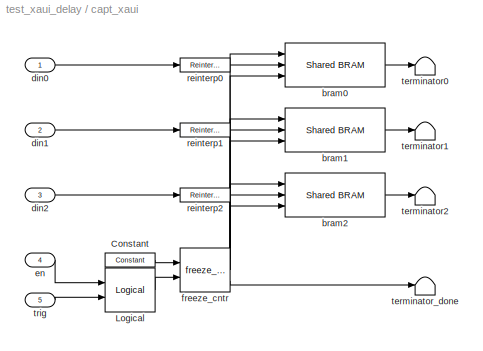
BLOCK [SubSystem] capt_xaui
  AncestorBlock = isi_correlator_lib/capture
  FunctionWithSeparateData = off
  MaskCallbackString = ||
  MaskDescription = This block captures N data lines into N separate BRAMs.
  MaskEnableString = on,on,on
  MaskHideContents = off
  MaskIconFrame = on
  MaskIconOpaque = on
  MaskIconRotate = none
  MaskIconUnits = autoscale
  MaskInitialization = capture_init(gcb, ...\n    'num_brams', num_brams, ...\n    'addr_width', addr_width, ...\n    'done_port', done_port);
  MaskPortRotate = default
  MaskPromptString = Number of BRAMs:|Address width:|Provide done port
  MaskSelfModifiable = on
  MaskStyleString = edit,edit,checkbox
  MaskToolTipString = on,on,on
  MaskTunableValueString = on,on,on
  MaskType = capture
  MaskValueString = 3|11|off
  MaskVariables = num_brams=@1;addr_width=@2;done_port=@3;
  MaskVisibilityString = on,on,on
  MinAlgLoopOccurrences = off
  Opaque = off
  Ports = [5]
  PropExecContextOutsideSubsystem = off
  RTWSystemCode = Auto
  RequestExecContextInheritance = off
  SID = 221
  UserData = DataTag5
  UserDataPersistent = on
BLOCK [Reference] capt_xaui/Constant  REF=xbsIndex_r4/Constant
  Ports = [0, 1]
  SID = 6
  SourceBlock = xbsIndex_r4/Constant
  SourceType = Xilinx Constant Block Block
  arith_type = Boolean
  bin_pt = 0
  block_type = constant
  block_version = 11.3
  carry = CIN
  const = 1
  dbl_ovrd = off
  dsp48_infoedit = The use of this block for DSP48 instructions is deprecated.  Please use the Opmode block.
  equ = P=C
  explicit_period = on
  has_advanced_control = 0
  inp1 = P
  inp2 = PCIN>>17
  n_bits = 1
  opr = +
  opselect = C
  period = 1
  sg_icon_stat = 50,14,0,1,white,blue,0,1c72b5be,right,
  sggui_pos = -1,-1,-1,-1
BLOCK [Reference] capt_xaui/Logical  REF=xbsIndex_r4/Logical
  Ports = [2, 1]
  SID = 7
  SourceBlock = xbsIndex_r4/Logical
  SourceType = Xilinx Logical Block Block
  align_bp = on
  arith_type = Unsigned
  bin_pt = 0
  block_type = logical
  block_version = 11.3
  dbl_ovrd = off
  en = off
  has_advanced_control = 0
  inputs = 2
  latency = 0
  logical_function = AND
  n_bits = 16
  precision = Full
  sg_icon_stat = 50,44,2,1,white,blue,0,0a851f85,right,
  sggui_pos = -1,-1,-1,-1
  xl_area = [0,0,0,0,0,0,0]
  xl_use_area = off
BLOCK [Reference] capt_xaui/bram0  REF=xps_library/Shared BRAM  (lib defined in mdl_00b5cec29cd0, mdl_02ab6ecaa3d1, +5 more)
  FunctionWithSeparateData = off
  Ports = [3, 1]
  RTWMemSecDataConstants = Inherit from model
  RTWMemSecDataInternal = Inherit from model
  RTWMemSecDataParameters = Inherit from model
  RTWMemSecFuncExecute = Inherit from model
  RTWMemSecFuncInitTerm = Inherit from model
  SID = 8
  ShowPortLabels = FromPortIcon
  SourceBlock = xps_library/Shared BRAM
  SystemSampleTime = -1
  Tag = xps:bram
  addr_width = addr_width
  arith_type = Unsigned
  data_bin_pt = 0
  data_width = 32
  init_vals = 0
  sample_rate = 1
BLOCK [Reference] capt_xaui/bram1  REF=xps_library/Shared BRAM  (lib defined in mdl_00b5cec29cd0, mdl_02ab6ecaa3d1, +5 more)
  FunctionWithSeparateData = off
  Ports = [3, 1]
  RTWMemSecDataConstants = Inherit from model
  RTWMemSecDataInternal = Inherit from model
  RTWMemSecDataParameters = Inherit from model
  RTWMemSecFuncExecute = Inherit from model
  RTWMemSecFuncInitTerm = Inherit from model
  SID = 9
  ShowPortLabels = FromPortIcon
  SourceBlock = xps_library/Shared BRAM
  SystemSampleTime = -1
  Tag = xps:bram
  addr_width = addr_width
  arith_type = Unsigned
  data_bin_pt = 0
  data_width = 32
  init_vals = 0
  sample_rate = 1
BLOCK [Reference] capt_xaui/bram2  REF=xps_library/Shared BRAM  (lib defined in mdl_00b5cec29cd0, mdl_02ab6ecaa3d1, +5 more)
  FunctionWithSeparateData = off
  Ports = [3, 1]
  RTWMemSecDataConstants = Inherit from model
  RTWMemSecDataInternal = Inherit from model
  RTWMemSecDataParameters = Inherit from model
  RTWMemSecFuncExecute = Inherit from model
  RTWMemSecFuncInitTerm = Inherit from model
  SID = 10
  ShowPortLabels = FromPortIcon
  SourceBlock = xps_library/Shared BRAM
  SystemSampleTime = -1
  Tag = xps:bram
  addr_width = addr_width
  arith_type = Unsigned
  data_bin_pt = 0
  data_width = 32
  init_vals = 0
  sample_rate = 1
BLOCK [Inport] capt_xaui/din0
  IconDisplay = Port number
  SID = 1
BLOCK [Inport] capt_xaui/din1
  IconDisplay = Port number
  Port = 2
  SID = 2
BLOCK [Inport] capt_xaui/din2
  IconDisplay = Port number
  Port = 3
  SID = 3
BLOCK [Inport] capt_xaui/en
  IconDisplay = Port number
  Port = 4
  SID = 4
BLOCK [Reference] capt_xaui/freeze_cntr  REF=casper_library/Misc/freeze_cntr  (lib defined in mdl_138b2fc3435f, mdl_4ed325b712b3, +2 more)
  CounterBits = addr_width
  FunctionWithSeparateData = off
  Ports = [2, 3]
  RTWMemSecDataConstants = Inherit from model
  RTWMemSecDataInternal = Inherit from model
  RTWMemSecDataParameters = Inherit from model
  RTWMemSecFuncExecute = Inherit from model
  RTWMemSecFuncInitTerm = Inherit from model
  SID = 11
  ShowPortLabels = FromPortIcon
  SourceBlock = casper_library/Misc/freeze_cntr
  SourceType = freeze_cntr
  SystemSampleTime = -1
BLOCK [Reference] capt_xaui/reinterp0  REF=xbsIndex_r4/Reinterpret
  Ports = [1, 1]
  SID = 12
  SourceBlock = xbsIndex_r4/Reinterpret
  SourceType = Xilinx Type Reinterpreter Block
  arith_type = Unsigned
  bin_pt = 0
  block_type = reinterpret
  block_version = 11.3
  force_arith_type = on
  force_bin_pt = on
  has_advanced_control = 0
  sg_icon_stat = 50,14,1,1,white,blue,0,6b04d0b0,right,
  sggui_pos = -1,-1,-1,-1
BLOCK [Reference] capt_xaui/reinterp1  REF=xbsIndex_r4/Reinterpret
  Ports = [1, 1]
  SID = 13
  SourceBlock = xbsIndex_r4/Reinterpret
  SourceType = Xilinx Type Reinterpreter Block
  arith_type = Unsigned
  bin_pt = 0
  block_type = reinterpret
  block_version = 11.3
  force_arith_type = on
  force_bin_pt = on
  has_advanced_control = 0
  sg_icon_stat = 50,14,1,1,white,blue,0,6b04d0b0,right,
  sggui_pos = -1,-1,-1,-1
BLOCK [Reference] capt_xaui/reinterp2  REF=xbsIndex_r4/Reinterpret
  Ports = [1, 1]
  SID = 14
  SourceBlock = xbsIndex_r4/Reinterpret
  SourceType = Xilinx Type Reinterpreter Block
  arith_type = Unsigned
  bin_pt = 0
  block_type = reinterpret
  block_version = 11.3
  force_arith_type = on
  force_bin_pt = on
  has_advanced_control = 0
  sg_icon_stat = 50,14,1,1,white,blue,0,6b04d0b0,right,
  sggui_pos = -1,-1,-1,-1
BLOCK [Terminator] capt_xaui/terminator0
  SID = 15
BLOCK [Terminator] capt_xaui/terminator1
  SID = 16
BLOCK [Terminator] capt_xaui/terminator2
  SID = 17
BLOCK [Terminator] capt_xaui/terminator_done
  SID = 18
BLOCK [Inport] capt_xaui/trig
  IconDisplay = Port number
  Port = 5
  SID = 5
BLOCK [Reference] control  REF=xps_library/software register  (lib defined in mdl_00b5cec29cd0, mdl_02ab6ecaa3d1, +5 more)
  FunctionWithSeparateData = off
  Ports = [1, 1]
  RTWMemSecDataConstants = Inherit from model
  RTWMemSecDataInternal = Inherit from model
  RTWMemSecDataParameters = Inherit from model
  RTWMemSecFuncExecute = Inherit from model
  RTWMemSecFuncInitTerm = Inherit from model
  SID = 224
  ShowPortLabels = FromPortIcon
  SourceBlock = xps_library/software register
  SystemSampleTime = -1
  Tag = xps:sw_reg
  arith_type = Unsigned
  bin_pt = 0
  bitwidth = 32
  gw_name = test_xaui_delay_control_user_data_out
  io_dir = From Processor
  sample_period = 1
BLOCK [Reference] control1  REF=xbsIndex_r4/Slice
  Ports = [1, 1]
  SID = 445
  SourceBlock = xbsIndex_r4/Slice
  SourceType = Xilinx Bit Slice Extractor Block
  base0 = LSB of Input
  base1 = MSB of Input
  bit0 = 0
  bit1 = 0
  block_type = slice
  block_version = 10.1.3
  boolean_output = off
  dbl_ovrd = off
  has_advanced_control = 0
  infoedit = Extracts a given range of bits from each input sample and presents it at the output.  The output type is ordinarily unsigned with binary point at zero, but can be Boolean when the slice is one bit wide.<br><br>Hardware notes: In hardware this block costs nothing.
  mode = Lower Bit Location + Width
  nbits = 10
  sg_icon_stat = 50,14,1,1,white,blue,0,1fd851a7,right,
  sg_mask_display = fprintf('','COMMENT: begin icon graphics');\npatch([0 1 1 0 ],[0 0 1 1 ],[0.77 0.82 0.91]);\npatch([0.42 0.38 0.44 0.38 0.42 0.5 0.52 0.54 0.62 0.56 0.5 0.46 0.52 0.46 0.5 0.56 0.62 0.54 0.52 0.5 0.42 ],[0.142857 0.285714 0.5 0.714286 0.857143 0.857143 0.785714 0.857143 0.857143 0.642857 0.857143 0.714286 0.5 0.285714 0.142857 0.357143 0.142857 0.142857 0.214286 0.142857 0.142857 ],[0.98 0.96 0.92...<+210ch>  <repeated x7 — deduplicated; at blocks: control1, control17, control18, control19, control20, control24, control25>
  sggui_pos = 20,20,449,376
BLOCK [Reference] control17  REF=xbsIndex_r4/Slice
  Ports = [1, 1]
  SID = 227
  SourceBlock = xbsIndex_r4/Slice
  SourceType = Xilinx Bit Slice Extractor Block
  base0 = LSB of Input
  base1 = MSB of Input
  bit0 = 0
  bit1 = 0
  block_type = slice
  block_version = 10.1.3
  boolean_output = on
  dbl_ovrd = off
  has_advanced_control = 0
  infoedit = Extracts a given range of bits from each input sample and presents it at the output.  The output type is ordinarily unsigned with binary point at zero, but can be Boolean when the slice is one bit wide.<P><P>Hardware notes: In hardware this block costs nothing.  <repeated x6 — deduplicated; at blocks: control17, control18, control19, control20, control24, control25>
  mode = Lower Bit Location + Width
  nbits = 1
  sg_icon_stat = 50,14,1,1,white,blue,0,1fd851a7,right,
  sggui_pos = 20,20,449,376
BLOCK [Reference] control18  REF=xbsIndex_r4/Slice
  Ports = [1, 1]
  SID = 228
  SourceBlock = xbsIndex_r4/Slice
  SourceType = Xilinx Bit Slice Extractor Block
  base0 = LSB of Input
  base1 = MSB of Input
  bit0 = 1
  bit1 = 0
  block_type = slice
  block_version = 10.1.3
  boolean_output = on
  dbl_ovrd = off
  has_advanced_control = 0
  mode = Lower Bit Location + Width
  nbits = 1
  sg_icon_stat = 50,14,1,1,white,blue,0,1fd851a7,right,
  sggui_pos = 20,20,449,376
BLOCK [Reference] control19  REF=xbsIndex_r4/Slice
  Ports = [1, 1]
  SID = 229
  SourceBlock = xbsIndex_r4/Slice
  SourceType = Xilinx Bit Slice Extractor Block
  base0 = LSB of Input
  base1 = MSB of Input
  bit0 = 2
  bit1 = 0
  block_type = slice
  block_version = 10.1.3
  boolean_output = on
  dbl_ovrd = off
  has_advanced_control = 0
  mode = Lower Bit Location + Width
  nbits = 1
  sg_icon_stat = 50,14,1,1,white,blue,0,1fd851a7,right,
  sggui_pos = 20,20,631,621
BLOCK [Reference] control20  REF=xbsIndex_r4/Slice
  Ports = [1, 1]
  SID = 231
  SourceBlock = xbsIndex_r4/Slice
  SourceType = Xilinx Bit Slice Extractor Block
  base0 = LSB of Input
  base1 = MSB of Input
  bit0 = 3
  bit1 = 0
  block_type = slice
  block_version = 10.1.3
  boolean_output = on
  dbl_ovrd = off
  has_advanced_control = 0
  mode = Lower Bit Location + Width
  nbits = 1
  sg_icon_stat = 50,14,1,1,white,blue,0,1fd851a7,right,
  sggui_pos = 20,20,449,376
BLOCK [Reference] control24  REF=xbsIndex_r4/Slice
  Ports = [1, 1]
  SID = 411
  SourceBlock = xbsIndex_r4/Slice
  SourceType = Xilinx Bit Slice Extractor Block
  base0 = LSB of Input
  base1 = MSB of Input
  bit0 = 0
  bit1 = 0
  block_type = slice
  block_version = 10.1.3
  boolean_output = on
  dbl_ovrd = off
  has_advanced_control = 0
  mode = Lower Bit Location + Width
  nbits = 1
  sg_icon_stat = 50,14,1,1,white,blue,0,1fd851a7,right,
  sggui_pos = 20,20,631,621
BLOCK [Reference] control25  REF=xbsIndex_r4/Slice
  Ports = [1, 1]
  SID = 412
  SourceBlock = xbsIndex_r4/Slice
  SourceType = Xilinx Bit Slice Extractor Block
  base0 = LSB of Input
  base1 = MSB of Input
  bit0 = 0
  bit1 = 0
  block_type = slice
  block_version = 10.1.3
  boolean_output = on
  dbl_ovrd = off
  has_advanced_control = 0
  mode = Lower Bit Location + Width
  nbits = 1
  sg_icon_stat = 50,14,1,1,white,blue,0,1fd851a7,right,
  sggui_pos = 20,20,631,621
BLOCK [Constant] default_control
  OutDataType = sfix(16)
  OutScaling = 2^0
  SID = 249
  SampleTime = 1
  Value = 0
BLOCK [Constant] default_loop_delay
  OutDataType = sfix(16)
  OutScaling = 2^0
  SID = 337
  SampleTime = 1
  Value = 0
BLOCK [Reference] loop_delay  REF=xps_library/software register  (lib defined in mdl_00b5cec29cd0, mdl_02ab6ecaa3d1, +5 more)
  FunctionWithSeparateData = off
  Ports = [1, 1]
  RTWMemSecDataConstants = Inherit from model
  RTWMemSecDataInternal = Inherit from model
  RTWMemSecDataParameters = Inherit from model
  RTWMemSecFuncExecute = Inherit from model
  RTWMemSecFuncInitTerm = Inherit from model
  SID = 335
  ShowPortLabels = FromPortIcon
  SourceBlock = xps_library/software register
  SystemSampleTime = -1
  Tag = xps:sw_reg
  arith_type = Unsigned
  bin_pt = 0
  bitwidth = 32
  gw_name = test_xaui_delay_loop_delay_user_data_out
  io_dir = From Processor
  sample_period = 1
BLOCK [SubSystem] loopback
  FunctionWithSeparateData = off
  MaskHideContents = off
  MinAlgLoopOccurrences = off
  Opaque = off
  Ports = [4, 3]
  PropExecContextOutsideSubsystem = off
  RTWSystemCode = Auto
  RequestExecContextInheritance = off
  SID = 414
BLOCK [Reference] loopback/ASR0  REF=xbsIndex_r4/Addressable Shift Register
  Ports = [2, 1]
  SID = 438
  SourceBlock = xbsIndex_r4/Addressable Shift Register
  SourceType = Xilinx Addressable Shift Register Block
  block_type = addrsr
  block_version = 11.4
  dbl_ovrd = off
  depth = 0
  en = off
  has_advanced_control = 0
  infer_latency = on
  infoedit = Delay of configurable length.  Any element in the delay line can be addressed and driven onto the output port.<br><br>Hardware notes: This block is implemented using SRL16s. If Virtex-4 or Spartan-3 device is used, multiple SRLC16s are cascaded together.
  initVector = [0]
  sg_icon_stat = 50,29,2,1,white,blue,0,a352fb33,right,
  sg_mask_display = fprintf('','COMMENT: begin icon graphics');\npatch([0 1 1 0 ],[0 0 1 1 ],[0.77 0.82 0.91]);\npatch([0.34 0.24 0.38 0.24 0.34 0.5 0.54 0.58 0.74 0.62 0.5 0.4 0.54 0.4 0.5 0.62 0.74 0.58 0.54 0.5 0.34 ],[0.103448 0.275862 0.517241 0.758621 0.931034 0.931034 0.862069 0.931034 0.931034 0.724138 0.931034 0.758621 0.517241 0.275862 0.103448 0.310345 0.103448 0.103448 0.172414 0.103448 0.103448 ],[0.98 0...<+303ch>
  sggui_pos = -1,-1,-1,-1
  use_behavioral_HDL = off
  xl_area = [0,0,0,0,0,0,0]
  xl_use_area = off
BLOCK [Reference] loopback/ASR1  REF=xbsIndex_r4/Addressable Shift Register
  Ports = [2, 1]
  SID = 439
  SourceBlock = xbsIndex_r4/Addressable Shift Register
  SourceType = Xilinx Addressable Shift Register Block
  block_type = addrsr
  block_version = 11.4
  dbl_ovrd = off
  depth = 0
  en = off
  has_advanced_control = 0
  infer_latency = on
  infoedit = Delay of configurable length.  Any element in the delay line can be addressed and driven onto the output port.<br><br>Hardware notes: This block is implemented using SRL16s. If Virtex-4 or Spartan-3 device is used, multiple SRLC16s are cascaded together.
  initVector = [0]
  sg_icon_stat = 50,29,2,1,white,blue,0,a352fb33,right,
  sg_mask_display = fprintf('','COMMENT: begin icon graphics');\npatch([0 1 1 0 ],[0 0 1 1 ],[0.77 0.82 0.91]);\npatch([0.34 0.24 0.38 0.24 0.34 0.5 0.54 0.58 0.74 0.62 0.5 0.4 0.54 0.4 0.5 0.62 0.74 0.58 0.54 0.5 0.34 ],[0.103448 0.275862 0.517241 0.758621 0.931034 0.931034 0.862069 0.931034 0.931034 0.724138 0.931034 0.758621 0.517241 0.275862 0.103448 0.310345 0.103448 0.103448 0.172414 0.103448 0.103448 ],[0.98 0...<+303ch>
  sggui_pos = -1,-1,-1,-1
  use_behavioral_HDL = off
  xl_area = [0,0,0,0,0,0,0]
  xl_use_area = off
BLOCK [Reference] loopback/Delay0  REF=xbsIndex_r4/Delay
  Ports = [1, 1]
  SID = 448
  SourceBlock = xbsIndex_r4/Delay
  SourceType = Xilinx Delay Block
  block_type = delay
  block_version = 10.1.3
  dbl_ovrd = off
  en = off
  has_advanced_control = 0
  infoedit = Hardware notes: A delay line is a chain, each link of which is an SRL16 followed by a flip-flop.
  latency = 2
  reg_retiming = on
  sg_icon_stat = 50,14,1,1,white,blue,0,85ce9542,right,
  sggui_pos = 20,20,348,255
  xl_area = [0,0,0,0,0,0,0]
  xl_use_area = off
BLOCK [Reference] loopback/Delay1  REF=xbsIndex_r4/Delay
  Ports = [1, 1]
  SID = 450
  SourceBlock = xbsIndex_r4/Delay
  SourceType = Xilinx Delay Block
  block_type = delay
  block_version = 10.1.3
  dbl_ovrd = off
  en = off
  has_advanced_control = 0
  infoedit = Hardware notes: A delay line is a chain, each link of which is an SRL16 followed by a flip-flop.
  latency = 2
  reg_retiming = on
  sg_icon_stat = 50,14,1,1,white,blue,0,85ce9542,right,
  sggui_pos = 20,20,348,255
  xl_area = [0,0,0,0,0,0,0]
  xl_use_area = off
BLOCK [Inport] loopback/addr
  IconDisplay = Port number
  OutDataType = sfix(16)
  OutScaling = 2^0
  Port = 4
  SID = 437
BLOCK [Inport] loopback/data_fifo
  IconDisplay = Port number
  OutDataType = sfix(16)
  OutScaling = 2^0
  Port = 2
  SID = 435
BLOCK [Outport] loopback/data_fifo_out
  IconDisplay = Port number
  OutDataType = sfix(16)
  OutScaling = 2^0
  Port = 2
  SID = 442
BLOCK [Inport] loopback/sync
  IconDisplay = Port number
  OutDataType = sfix(16)
  OutScaling = 2^0
  SID = 434
BLOCK [Outport] loopback/sync_out
  IconDisplay = Port number
  OutDataType = sfix(16)
  OutScaling = 2^0
  SID = 441
BLOCK [Inport] loopback/valid_fifo
  IconDisplay = Port number
  OutDataType = sfix(16)
  OutScaling = 2^0
  Port = 3
  SID = 436
BLOCK [Outport] loopback/valid_fifo_out
  IconDisplay = Port number
  OutDataType = sfix(16)
  OutScaling = 2^0
  Port = 3
  SID = 443
BLOCK [Reference] mask_syncY  REF=xbsIndex_r4/Logical
  Ports = [2, 1]
  SID = 415
  SourceBlock = xbsIndex_r4/Logical
  SourceType = Xilinx Logical Block Block
  align_bp = on
  arith_type = Unsigned
  bin_pt = 0
  block_type = logical
  block_version = 11.4
  dbl_ovrd = off
  en = off
  has_advanced_control = 0
  inputs = 2
  latency = 1
  logical_function = AND
  n_bits = 16
  precision = Full
  sg_icon_stat = 50,29,2,1,white,blue,0,2d68f70b,right,
  sg_list_contents = {'table'=>{'logical_function'=>'popup(AND|NAND|OR|NOR|XOR|XNOR)','userSelections'=>{'logical_function'=>'AND'}}}
  sg_mask_display = fprintf('','COMMENT: begin icon graphics');\npatch([0 1 1 0 ],[0 0 1 1 ],[0.77 0.82 0.91]);\npatch([0.34 0.24 0.38 0.24 0.34 0.5 0.54 0.58 0.74 0.62 0.5 0.4 0.54 0.4 0.5 0.62 0.74 0.58 0.54 0.5 0.34 ],[0.103448 0.275862 0.517241 0.758621 0.931034 0.931034 0.862069 0.931034 0.931034 0.724138 0.931034 0.758621 0.517241 0.275862 0.103448 0.310345 0.103448 0.103448 0.172414 0.103448 0.103448 ],[0.98 0...<+238ch>
  sggui_pos = -1,-1,-1,-1
  xl_area = [0,0,0,0,0,0,0]
  xl_use_area = off
BLOCK [Reference] mask_syncZ  REF=xbsIndex_r4/Logical
  Ports = [2, 1]
  SID = 416
  SourceBlock = xbsIndex_r4/Logical
  SourceType = Xilinx Logical Block Block
  align_bp = on
  arith_type = Unsigned
  bin_pt = 0
  block_type = logical
  block_version = 11.4
  dbl_ovrd = off
  en = off
  has_advanced_control = 0
  inputs = 2
  latency = 1
  logical_function = AND
  n_bits = 16
  precision = Full
  sg_icon_stat = 50,29,2,1,white,blue,0,2d68f70b,right,
  sg_list_contents = {'table'=>{'logical_function'=>'popup(AND|NAND|OR|NOR|XOR|XNOR)','userSelections'=>{'logical_function'=>'AND'}}}
  sg_mask_display = fprintf('','COMMENT: begin icon graphics');\npatch([0 1 1 0 ],[0 0 1 1 ],[0.77 0.82 0.91]);\npatch([0.34 0.24 0.38 0.24 0.34 0.5 0.54 0.58 0.74 0.62 0.5 0.4 0.54 0.4 0.5 0.62 0.74 0.58 0.54 0.5 0.34 ],[0.103448 0.275862 0.517241 0.758621 0.931034 0.931034 0.862069 0.931034 0.931034 0.724138 0.931034 0.758621 0.517241 0.275862 0.103448 0.310345 0.103448 0.103448 0.172414 0.103448 0.103448 ],[0.98 0...<+238ch>
  sggui_pos = -1,-1,-1,-1
  xl_area = [0,0,0,0,0,0,0]
  xl_use_area = off
BLOCK [Reference] sync_gen2  REF=isi_correlator_lib/sync_gen2  (lib defined in mdl_4b72aa53f299)
  FunctionWithSeparateData = off
  Ports = [1, 1]
  RTWMemSecDataConstants = Inherit from model
  RTWMemSecDataInternal = Inherit from model
  RTWMemSecDataParameters = Inherit from model
  RTWMemSecFuncExecute = Inherit from model
  RTWMemSecFuncInitTerm = Inherit from model
  SID = 260
  ShowPortLabels = FromPortIcon
  SourceBlock = isi_correlator_lib/sync_gen2
  SourceType = sync_gen2
  SystemSampleTime = -1
  UserData = DataTag6
  UserDataPersistent = on
BLOCK [Reference] tvg  REF=isi_correlator_lib/tvg  (lib defined in mdl_4b72aa53f299)
  FunctionWithSeparateData = off
  Ports = [1, 2]
  RTWMemSecDataConstants = Inherit from model
  RTWMemSecDataInternal = Inherit from model
  RTWMemSecDataParameters = Inherit from model
  RTWMemSecFuncExecute = Inherit from model
  RTWMemSecFuncInitTerm = Inherit from model
  SID = 266
  ShowPortLabels = FromPortIcon
  SourceBlock = isi_correlator_lib/tvg
  SystemSampleTime = -1
  addr_width = 11
BLOCK [Reference] xaui0  REF=xps_library/XAUI  (lib defined in mdl_00b5cec29cd0, mdl_02ab6ecaa3d1, +5 more)
  FunctionWithSeparateData = off
  Ports = [5, 7]
  RTWMemSecDataConstants = Inherit from model
  RTWMemSecDataInternal = Inherit from model
  RTWMemSecDataParameters = Inherit from model
  RTWMemSecFuncExecute = Inherit from model
  RTWMemSecFuncInitTerm = Inherit from model
  SID = 418
  ShowPortLabels = FromPortIcon
  SourceBlock = xps_library/XAUI
  SourceType = xaui
  SystemSampleTime = -1
  Tag = xps:xaui
  demux = 2
  open_phy = on
  port = ROACH:0
  pre_emph = 3
  show_param = off
  swing = 800
BLOCK [Reference] xaui3  REF=xps_library/XAUI  (lib defined in mdl_00b5cec29cd0, mdl_02ab6ecaa3d1, +5 more)
  FunctionWithSeparateData = off
  Ports = [5, 7]
  RTWMemSecDataConstants = Inherit from model
  RTWMemSecDataInternal = Inherit from model
  RTWMemSecDataParameters = Inherit from model
  RTWMemSecFuncExecute = Inherit from model
  RTWMemSecFuncInitTerm = Inherit from model
  SID = 419
  ShowPortLabels = FromPortIcon
  SourceBlock = xps_library/XAUI
  SourceType = xaui
  SystemSampleTime = -1
  Tag = xps:xaui
  demux = 2
  open_phy = on
  port = ROACH:3
  pre_emph = 3
  show_param = off
  swing = 800
BLOCK [Reference] xaui_resync  REF=isi_correlator_lib/xaui_resync  (lib defined in mdl_4b72aa53f299)
  FunctionWithSeparateData = off
  Ports = [6, 5]
  RTWMemSecDataConstants = Inherit from model
  RTWMemSecDataInternal = Inherit from model
  RTWMemSecDataParameters = Inherit from model
  RTWMemSecFuncExecute = Inherit from model
  RTWMemSecFuncInitTerm = Inherit from model
  SID = 422
  ShowPortLabels = FromPortIcon
  SourceBlock = isi_correlator_lib/xaui_resync
  SourceType = link_demux
  SystemSampleTime = -1
  buffer_depth = 10
  logic_latency = 1
LINE Concat1:1 -> xaui0:4
LINE Concat2:1 -> capt_valid:1
LINE Concat3:1 -> capt_sync:1
LINE Concat4:1 -> xaui3:4
LINE Constant10:1 -> Concat2:1
LINE Constant11:1 -> Concat3:1
LINE Constant12:1 -> Concat1:1
LINE Constant1:1 -> Concat4:1
NET Constant2:1 -> loopback:3, xaui0:1, xaui0:5, xaui3:1, xaui3:5
LINE Constant3:1 -> Concat2:5
LINE Delay1:1 -> Goto15:1
LINE Delay25:1 -> Goto116:1
LINE Delay26:1 -> Goto112:1
LINE Delay27:1 -> Goto113:1
LINE Delay28:1 -> Goto114:1
LINE Delay2:1 -> Goto6:1
LINE Delay3:1 -> Goto7:1
LINE Delay4:1 -> Goto9:1
LINE Delay5:1 -> Goto115:1
LINE Delay6:1 -> Goto10:1
LINE Delay7:1 -> Goto11:1
LINE Delay8:1 -> Goto117:1
LINE From101:1 -> Concat3:5
LINE From102:1 -> Concat3:4
LINE From103:1 -> Concat3:3
LINE From104:1 -> Concat3:2
LINE From105:1 -> capt_sync:2
LINE From106:1 -> capt_sync:3
LINE From10:1 -> capt_xaui:2
NET From117:1 -> Concat1:2, Concat4:2, loopback:1
NET From118:1 -> loopback:2, xaui0:3, xaui3:3
LINE From11:1 -> capt_xaui:4
NET From12:1 -> xaui0:2, xaui3:2
LINE From195:1 -> capt_resync:3
LINE From196:1 -> capt_resync:5
LINE From197:1 -> capt_resync:1
LINE From198:1 -> capt_resync:2
LINE From199:1 -> capt_resync:4
LINE From1:1 -> tvg:1
LINE From28:1 -> xaui_resync:1
LINE From29:1 -> xaui_resync:2
LINE From2:1 -> loopback:4
LINE From31:1 -> xaui_resync:3
LINE From32:1 -> xaui_resync:4
LINE From34:1 -> xaui_resync:5
LINE From35:1 -> xaui_resync:6
LINE From4:1 -> capt_xaui:3
LINE From56:1 -> capt_tvg:3
LINE From57:1 -> capt_tvg:1
LINE From59:1 -> capt_tvg:2
LINE From65:1 -> armed_trig:2
LINE From67:1 -> armed_trig:1
LINE From6:1 -> capt_xaui:5
LINE From8:1 -> capt_xaui:1
LINE From93:1 -> Concat2:4
LINE From94:1 -> Concat2:3
LINE From95:1 -> Concat2:2
LINE From96:1 -> capt_valid:2
LINE From97:1 -> capt_valid:3
LINE armed_trig:1 -> sync_gen2:1
LINE armed_trig:2 -> Goto27:1
LINE capt_resync/Constant:1 -> capt_resync/freeze_cntr:1
LINE capt_resync/Logical:1 -> capt_resync/freeze_cntr:2
LINE capt_resync/bram0:1 -> capt_resync/terminator0:1
LINE capt_resync/bram1:1 -> capt_resync/terminator1:1
LINE capt_resync/bram2:1 -> capt_resync/terminator2:1
LINE capt_resync/din0:1 -> capt_resync/reinterp0:1
LINE capt_resync/din1:1 -> capt_resync/reinterp1:1
LINE capt_resync/din2:1 -> capt_resync/reinterp2:1
LINE capt_resync/en:1 -> capt_resync/Logical:1
NET capt_resync/freeze_cntr:1 -> capt_resync/bram0:1, capt_resync/bram1:1, capt_resync/bram2:1
NET capt_resync/freeze_cntr:2 -> capt_resync/bram0:3, capt_resync/bram1:3, capt_resync/bram2:3
LINE capt_resync/freeze_cntr:3 -> capt_resync/terminator_done:1
LINE capt_resync/reinterp0:1 -> capt_resync/bram0:2
LINE capt_resync/reinterp1:1 -> capt_resync/bram1:2
LINE capt_resync/reinterp2:1 -> capt_resync/bram2:2
LINE capt_resync/trig:1 -> capt_resync/Logical:2
LINE capt_sync/Constant:1 -> capt_sync/freeze_cntr:1
LINE capt_sync/Logical:1 -> capt_sync/freeze_cntr:2
LINE capt_sync/bram0:1 -> capt_sync/terminator0:1
LINE capt_sync/din0:1 -> capt_sync/reinterp0:1
LINE capt_sync/en:1 -> capt_sync/Logical:1
LINE capt_sync/freeze_cntr:1 -> capt_sync/bram0:1
LINE capt_sync/freeze_cntr:2 -> capt_sync/bram0:3
LINE capt_sync/freeze_cntr:3 -> capt_sync/terminator_done:1
LINE capt_sync/reinterp0:1 -> capt_sync/bram0:2
LINE capt_sync/trig:1 -> capt_sync/Logical:2
LINE capt_tvg/Constant:1 -> capt_tvg/freeze_cntr:1
LINE capt_tvg/Logical:1 -> capt_tvg/freeze_cntr:2
LINE capt_tvg/bram0:1 -> capt_tvg/terminator0:1
LINE capt_tvg/din0:1 -> capt_tvg/reinterp0:1
LINE capt_tvg/en:1 -> capt_tvg/Logical:1
LINE capt_tvg/freeze_cntr:1 -> capt_tvg/bram0:1
LINE capt_tvg/freeze_cntr:2 -> capt_tvg/bram0:3
LINE capt_tvg/freeze_cntr:3 -> capt_tvg/terminator_done:1
LINE capt_tvg/reinterp0:1 -> capt_tvg/bram0:2
LINE capt_tvg/trig:1 -> capt_tvg/Logical:2
LINE capt_valid/Constant:1 -> capt_valid/freeze_cntr:1
LINE capt_valid/Logical:1 -> capt_valid/freeze_cntr:2
LINE capt_valid/bram0:1 -> capt_valid/terminator0:1
LINE capt_valid/din0:1 -> capt_valid/reinterp0:1
LINE capt_valid/en:1 -> capt_valid/Logical:1
LINE capt_valid/freeze_cntr:1 -> capt_valid/bram0:1
LINE capt_valid/freeze_cntr:2 -> capt_valid/bram0:3
LINE capt_valid/freeze_cntr:3 -> capt_valid/terminator_done:1
LINE capt_valid/reinterp0:1 -> capt_valid/bram0:2
LINE capt_valid/trig:1 -> capt_valid/Logical:2
LINE capt_xaui/Constant:1 -> capt_xaui/freeze_cntr:1
LINE capt_xaui/Logical:1 -> capt_xaui/freeze_cntr:2
LINE capt_xaui/bram0:1 -> capt_xaui/terminator0:1
LINE capt_xaui/bram1:1 -> capt_xaui/terminator1:1
LINE capt_xaui/bram2:1 -> capt_xaui/terminator2:1
LINE capt_xaui/din0:1 -> capt_xaui/reinterp0:1
LINE capt_xaui/din1:1 -> capt_xaui/reinterp1:1
LINE capt_xaui/din2:1 -> capt_xaui/reinterp2:1
LINE capt_xaui/en:1 -> capt_xaui/Logical:1
NET capt_xaui/freeze_cntr:1 -> capt_xaui/bram0:1, capt_xaui/bram1:1, capt_xaui/bram2:1
NET capt_xaui/freeze_cntr:2 -> capt_xaui/bram0:3, capt_xaui/bram1:3, capt_xaui/bram2:3
LINE capt_xaui/freeze_cntr:3 -> capt_xaui/terminator_done:1
LINE capt_xaui/reinterp0:1 -> capt_xaui/bram0:2
LINE capt_xaui/reinterp1:1 -> capt_xaui/bram1:2
LINE capt_xaui/reinterp2:1 -> capt_xaui/bram2:2
LINE capt_xaui/trig:1 -> capt_xaui/Logical:2
LINE control17:1 -> Delay25:1
LINE control18:1 -> Delay26:1
LINE control19:1 -> Delay27:1
LINE control1:1 -> Delay7:1
LINE control20:1 -> Delay28:1
LINE control24:1 -> mask_syncY:1
LINE control25:1 -> mask_syncZ:1
NET control:1 -> control17:1, control18:1, control19:1, control20:1
LINE default_control:1 -> control:1
LINE default_loop_delay:1 -> loop_delay:1
LINE loop_delay:1 -> control1:1
LINE loopback/ASR0:1 -> loopback/sync_out:1
LINE loopback/ASR1:1 -> loopback/data_fifo_out:1
LINE loopback/Delay0:1 -> loopback/ASR0:2
LINE loopback/Delay1:1 -> loopback/ASR1:2
NET loopback/addr:1 -> loopback/Delay0:1, loopback/Delay1:1
LINE loopback/data_fifo:1 -> loopback/ASR1:1
LINE loopback/sync:1 -> loopback/ASR0:1
LINE loopback/valid_fifo:1 -> loopback/valid_fifo_out:1
LINE loopback:1 -> Delay1:1
LINE loopback:2 -> Delay2:1
LINE loopback:3 -> Delay3:1
LINE mask_syncY:1 -> Goto14:1
LINE mask_syncZ:1 -> Goto12:1
LINE sync_gen2:1 -> Goto26:1
LINE tvg:1 -> Goto8:1
LINE tvg:2 -> Goto1:1
LINE xaui0:1 -> Delay4:1
LINE xaui0:2 -> control24:1
LINE xaui0:3 -> Terminator3:1
NET xaui0:4 -> Delay5:1, mask_syncY:2
LINE xaui0:5 -> Terminator1:1
LINE xaui0:6 -> Terminator9:1
LINE xaui0:7 -> Terminator2:1
LINE xaui3:1 -> Delay6:1
LINE xaui3:2 -> control25:1
LINE xaui3:3 -> Terminator12:1
NET xaui3:4 -> Delay8:1, mask_syncZ:2
LINE xaui3:5 -> Terminator4:1
LINE xaui3:6 -> Terminator15:1
LINE xaui3:7 -> Terminator11:1
LINE xaui_resync:1 -> Goto16:1
LINE xaui_resync:2 -> Goto17:1
LINE xaui_resync:3 -> Goto18:1
LINE xaui_resync:4 -> Goto19:1
LINE xaui_resync:5 -> Goto20:1
note: NET lines group one-source signal fan-out (src -> all destinations, sorted); 1:1 wires keep LINE
